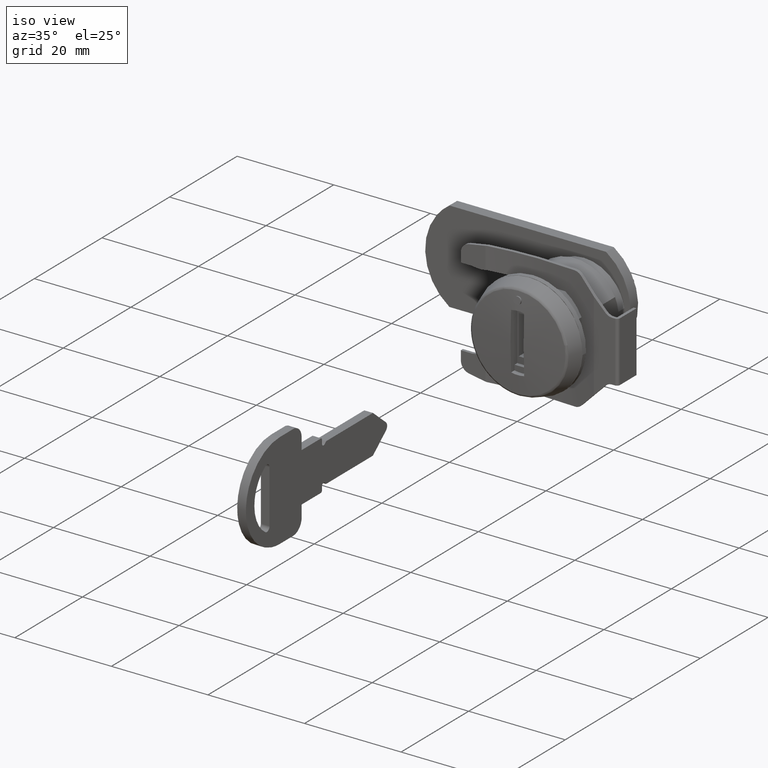
[diagram: clean part render]
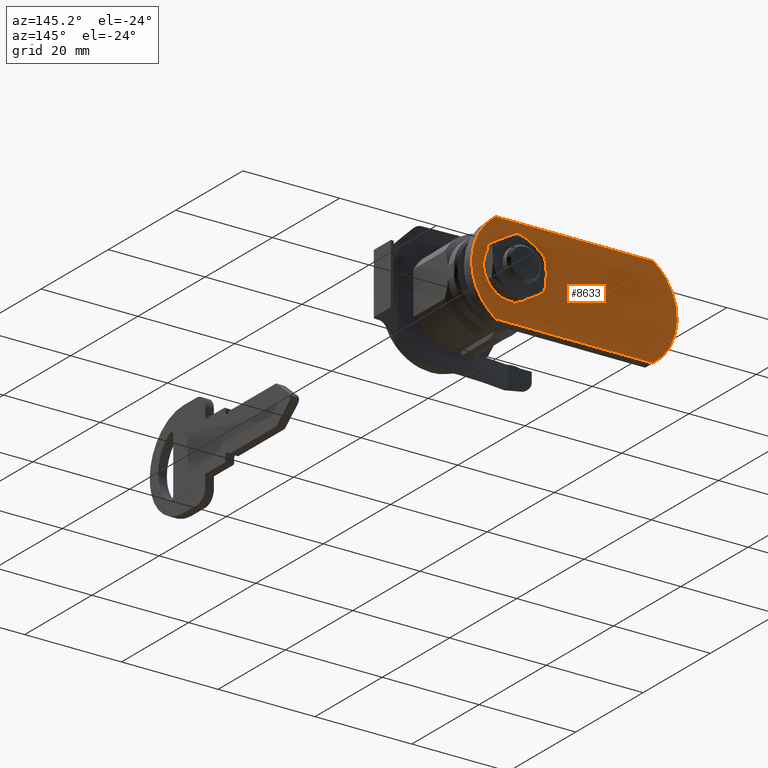
[diagram: tour spotlight — one face highlighted and labeled with its STEP entity id]
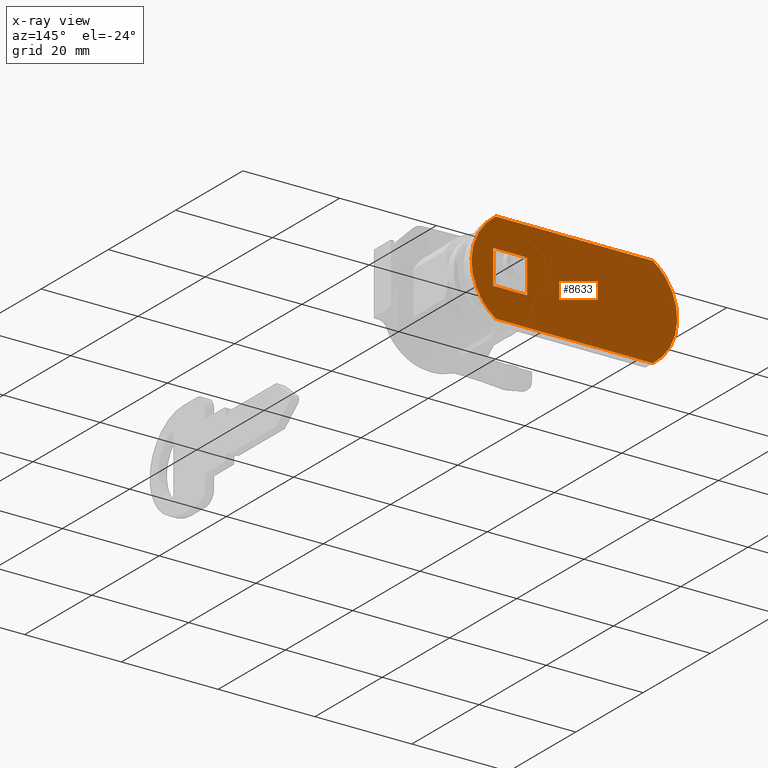
[diagram: x-ray of the same camera — body ghosted, this tour face saturated]
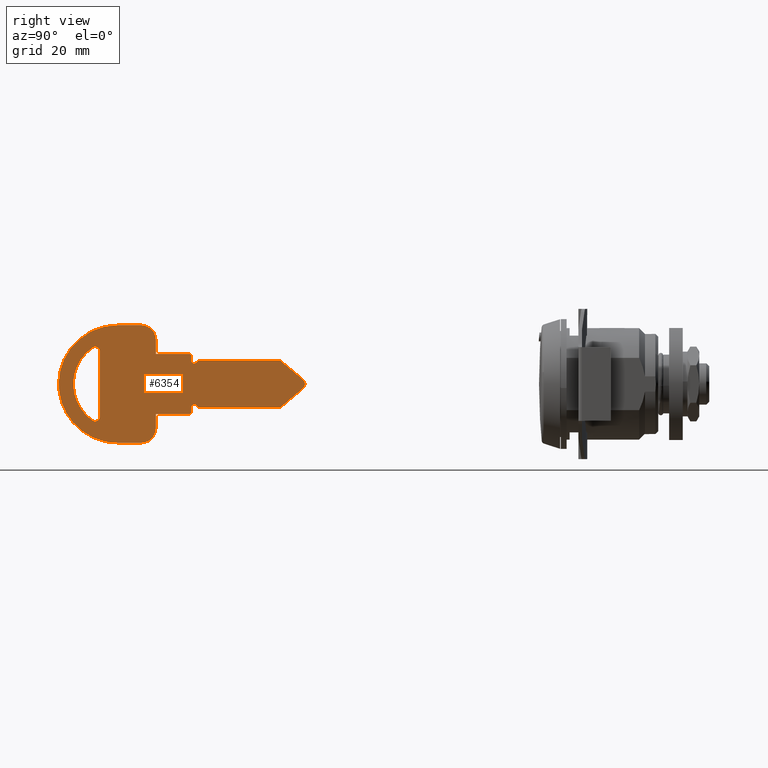
[diagram: tour spotlight — one face highlighted and labeled with its STEP entity id]
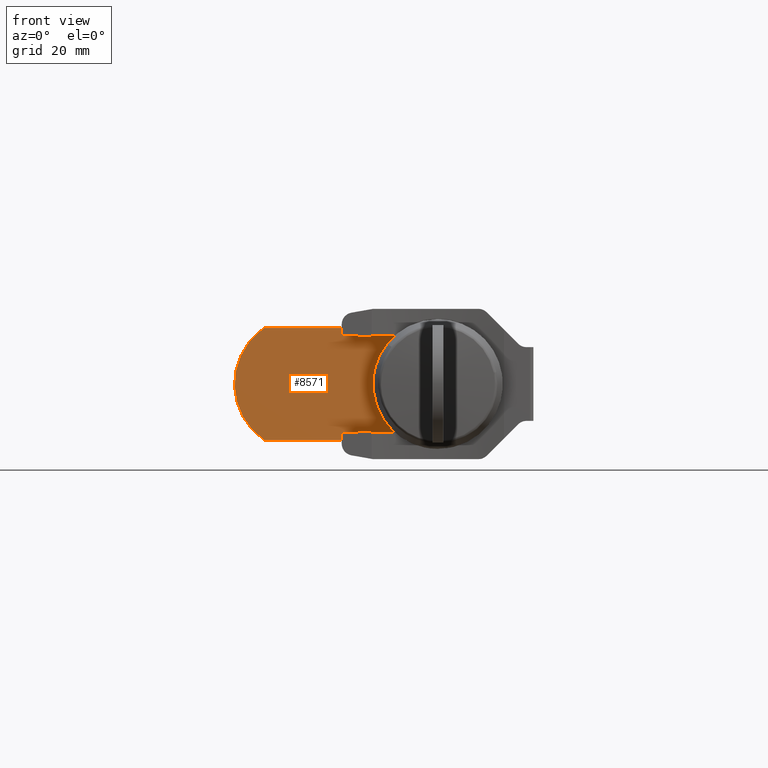
[diagram: tour spotlight — one face highlighted and labeled with its STEP entity id]
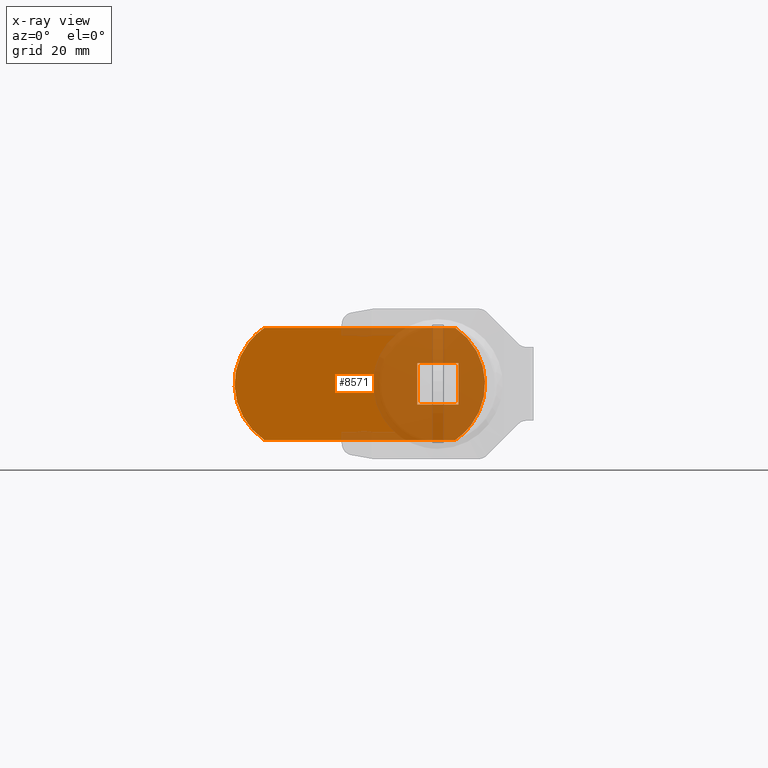
[diagram: x-ray of the same camera — body ghosted, this tour face saturated]
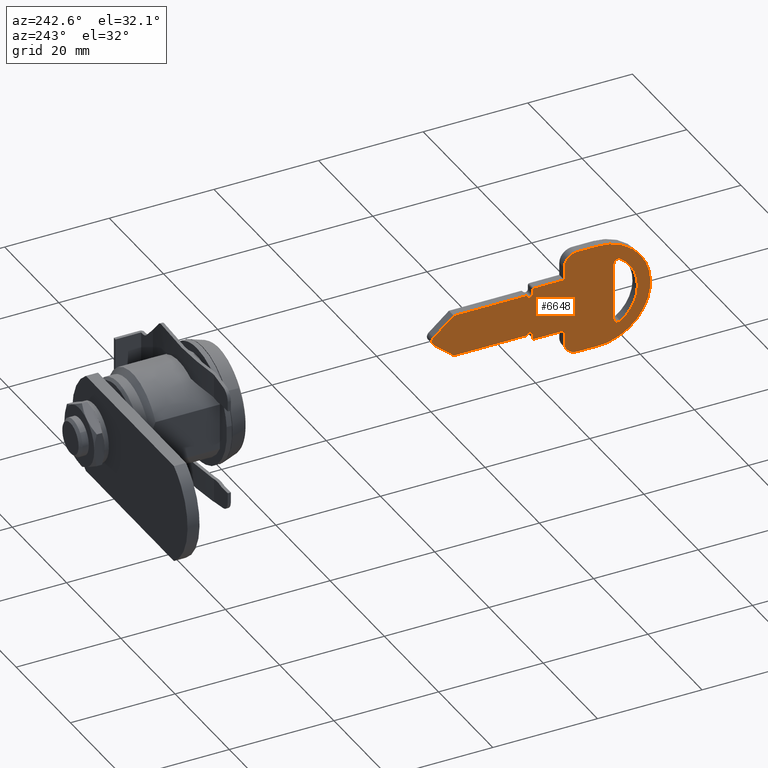
[diagram: tour spotlight — one face highlighted and labeled with its STEP entity id]
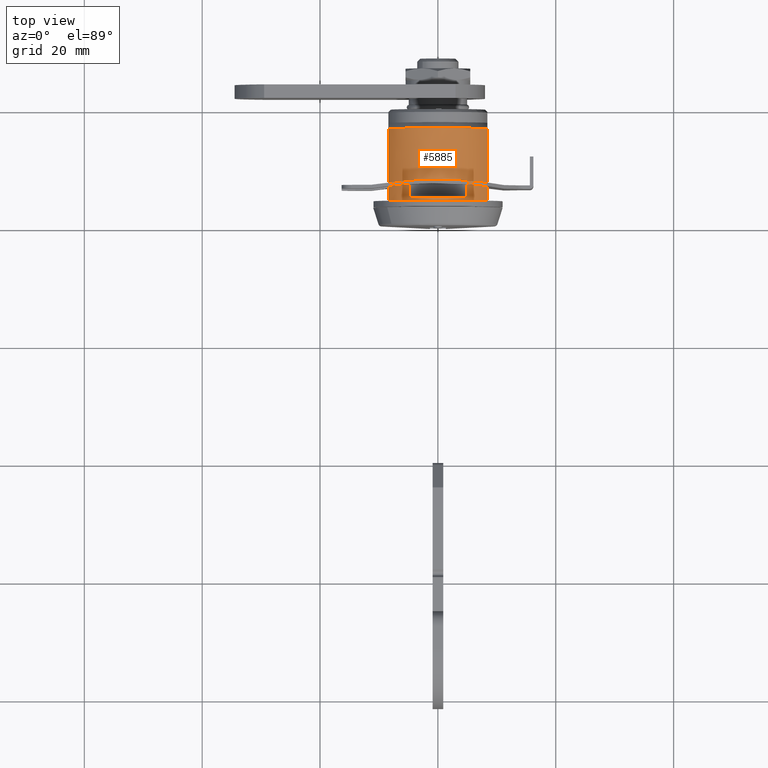
[diagram: tour spotlight — one face highlighted and labeled with its STEP entity id]
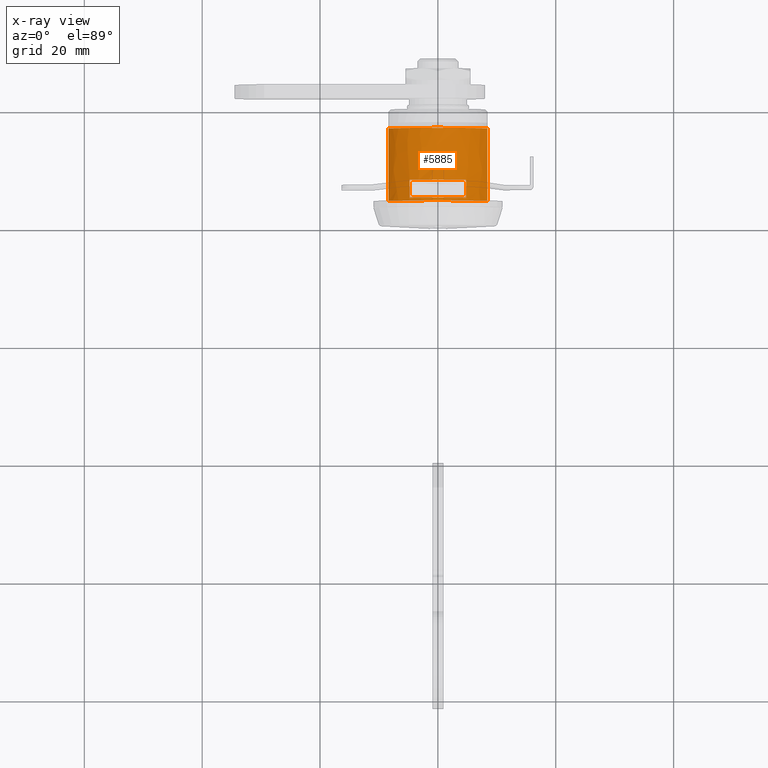
[diagram: x-ray of the same camera — body ghosted, this tour face saturated]
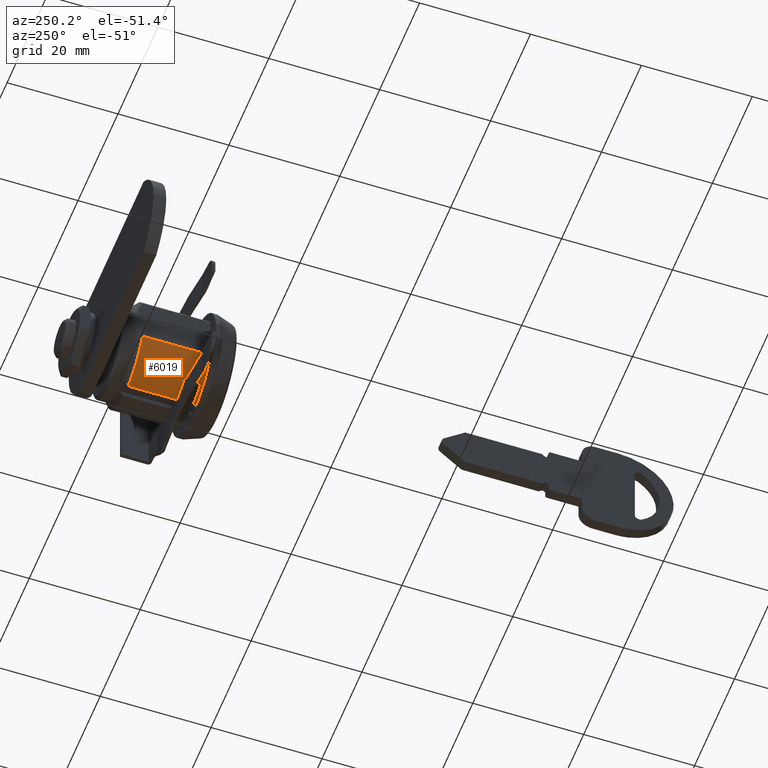
[diagram: tour spotlight — one face highlighted and labeled with its STEP entity id]
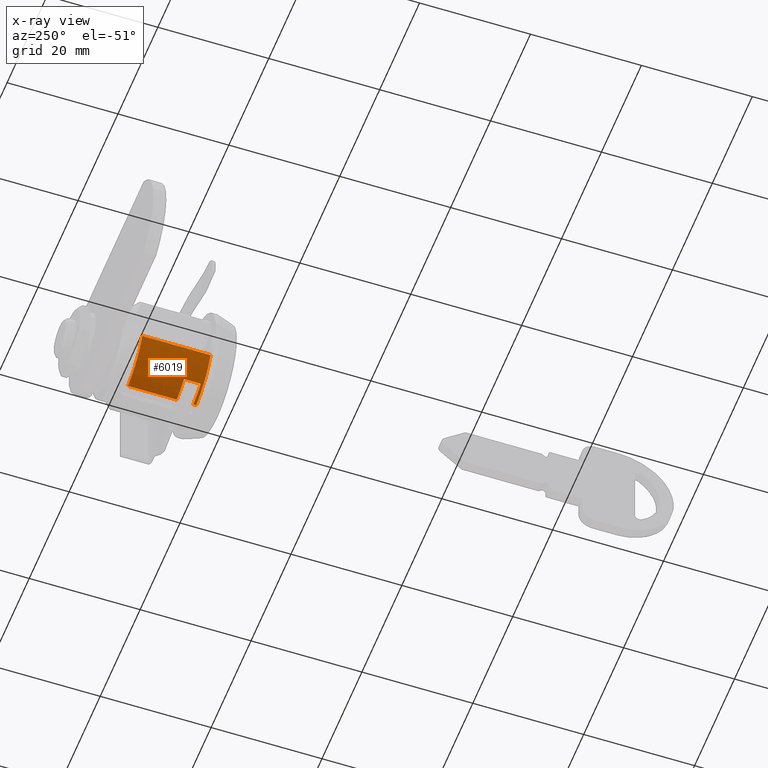
[diagram: x-ray of the same camera — body ghosted, this tour face saturated]
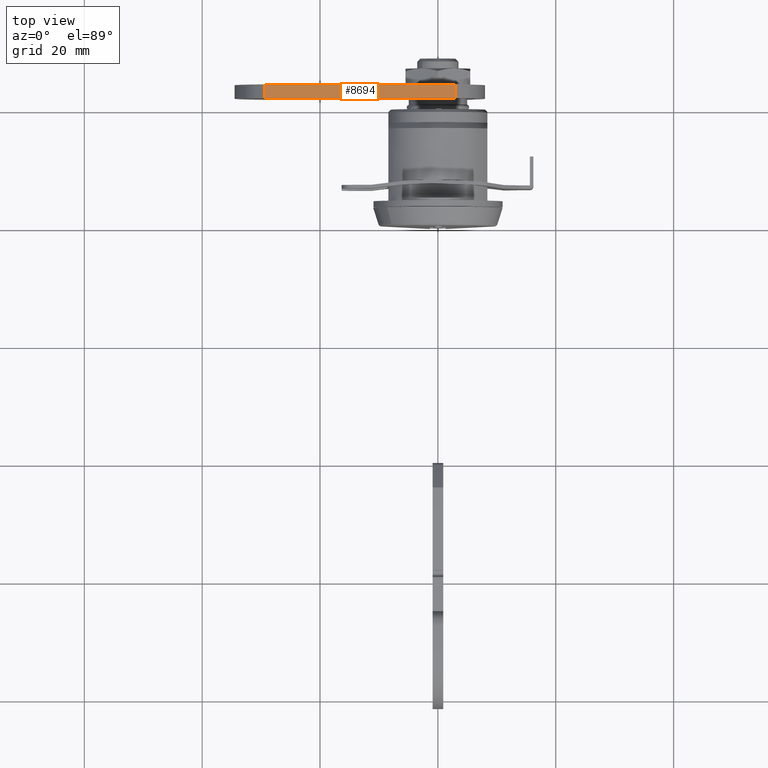
[diagram: tour spotlight — one face highlighted and labeled with its STEP entity id]
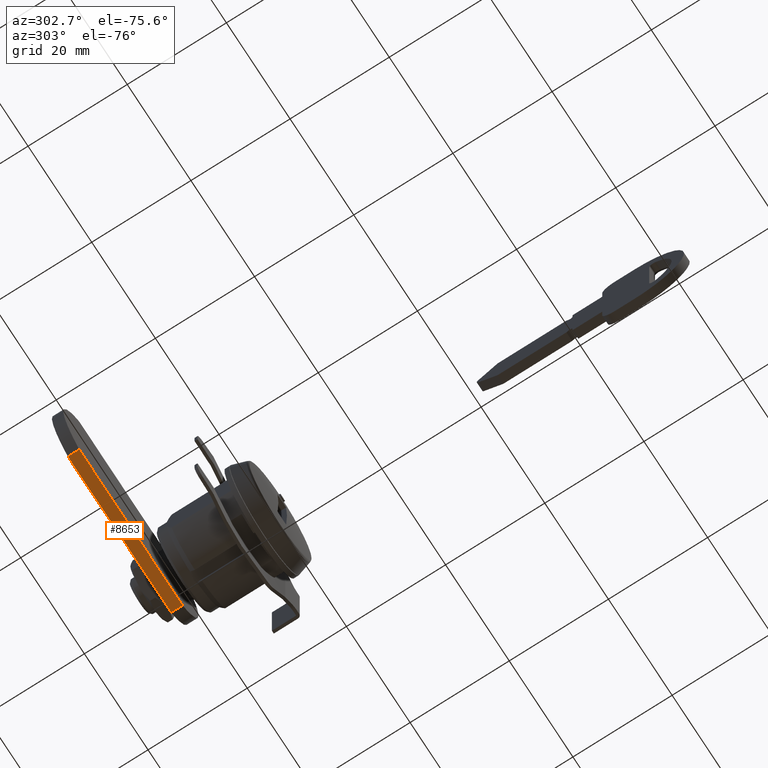
[diagram: tour spotlight — one face highlighted and labeled with its STEP entity id]
A machine part: a face-by-face anatomy tour. The part has 181 B-rep faces; the first image is the clean iso view, then the 8 largest visible faces are spotlighted one at a time (largest first), each with its STEP entity span.

Face 1 — auxiliary view, entity #8633. An x-ray twin of the same camera follows (body ghosted, this face saturated) — the face is partly hidden behind the body. In plain terms, the highlighted face is a freeform B-spline surface patch.
Definition (entity closure, byte-faithful):
#8412=CARTESIAN_POINT('',(24.401255000000099,-3.500000000000000,-3.500000000000000));
#8413=VERTEX_POINT('',#8412);
#8419=CARTESIAN_POINT('',(24.401255000000099,3.500000000000000,-3.500000000000000));
#8420=VERTEX_POINT('',#8419);
#8421=CARTESIAN_POINT('',(24.401255000000099,3.500000000000000,-3.500000000000000));
#8422=CARTESIAN_POINT('',(24.401255000000099,-3.500000000000000,-3.500000000000000));
#8423=QUASI_UNIFORM_CURVE('',1,(#8421,#8422),.UNSPECIFIED.,.F.,.U.);
#8424=EDGE_CURVE('',#8420,#8413,#8423,.T.);
#8447=CARTESIAN_POINT('',(24.401255000000099,3.500000000000000,3.500000000000000));
#8448=VERTEX_POINT('',#8447);
#8449=CARTESIAN_POINT('',(24.401255000000099,3.500000000000000,3.500000000000000));
#8450=CARTESIAN_POINT('',(24.401255000000099,3.500000000000000,-3.500000000000000));
#8451=QUASI_UNIFORM_CURVE('',1,(#8449,#8450),.UNSPECIFIED.,.F.,.U.);
#8452=EDGE_CURVE('',#8448,#8420,#8451,.T.);
#8475=CARTESIAN_POINT('',(24.401255000000099,-3.500000000000000,3.500000000000000));
#8476=VERTEX_POINT('',#8475);
#8477=CARTESIAN_POINT('',(24.401255000000099,-3.500000000000000,3.500000000000000));
#8478=CARTESIAN_POINT('',(24.401255000000099,3.500000000000000,3.500000000000000));
#8479=QUASI_UNIFORM_CURVE('',1,(#8477,#8478),.UNSPECIFIED.,.F.,.U.);
#8480=EDGE_CURVE('',#8476,#8448,#8479,.T.);
#8501=CARTESIAN_POINT('',(24.401255000000099,-3.500000000000000,-3.500000000000000));
#8502=CARTESIAN_POINT('',(24.401255000000099,-3.500000000000000,3.500000000000000));
#8503=QUASI_UNIFORM_CURVE('',1,(#8501,#8502),.UNSPECIFIED.,.F.,.U.);
#8504=EDGE_CURVE('',#8413,#8476,#8503,.T.);
#8572=CARTESIAN_POINT('',(24.401255000000099,-10.122874917626749,10.449049963174319));
#8573=CARTESIAN_POINT('',(24.401255000000099,36.622876057565563,10.449049963174319));
#8574=CARTESIAN_POINT('',(24.401255000000099,-10.122874917626749,-10.449050472794230));
#8575=CARTESIAN_POINT('',(24.401255000000099,36.622876057565563,-10.449050472794230));
#8576=B_SPLINE_SURFACE_WITH_KNOTS('',1,1,((#8572,#8574),(#8573,#8575)),.UNSPECIFIED.,.F.,.F.,.U.,(2,2),(2,2),(0.0,46.745750975192308),(0.0,20.898100435968558),.UNSPECIFIED.);
#8577=CARTESIAN_POINT('',(24.401255000000099,29.480741000000101,-9.500000000000199));
#8578=VERTEX_POINT('',#8577);
#8579=CARTESIAN_POINT('',(24.401255000000099,29.480741000000101,9.500000000000000));
#8580=VERTEX_POINT('',#8579);
#8581=CARTESIAN_POINT('',(24.401255000000099,29.480741000000101,-9.500000000000199));
#8582=CARTESIAN_POINT('',(24.401255000000106,34.500000297743824,-6.075945747461589));
#8583=CARTESIAN_POINT('',(24.401255000000099,34.499999999999993,-0.000000436457379));
#8584=CARTESIAN_POINT('',(24.401255000000106,34.499999702256140,6.075944874546834));
#8585=CARTESIAN_POINT('',(24.401255000000099,29.480741000000101,9.500000000000000));
#8593=(BOUNDED_CURVE()B_SPLINE_CURVE(2,(#8581,#8582,#8583,#8584,#8585),.UNSPECIFIED.,.F.,.U.)B_SPLINE_CURVE_WITH_KNOTS((3,2,3),(0.0,0.500000000000000,1.0),.UNSPECIFIED.)CURVE()GEOMETRIC_REPRESENTATION_ITEM()RATIONAL_B_SPLINE_CURVE((1.0,0.884178343809524,1.0,0.884178343809524,1.0))REPRESENTATION_ITEM(''));
#8594=EDGE_CURVE('',#8578,#8580,#8593,.T.);
#8595=ORIENTED_EDGE('',*,*,#8594,.T.);
#8596=CARTESIAN_POINT('',(24.401255000000099,-2.980740999999910,9.500000000000000));
#8597=VERTEX_POINT('',#8596);
#8598=CARTESIAN_POINT('',(24.401255000000099,29.480741000000101,9.500000000000000));
#8599=CARTESIAN_POINT('',(24.401255000000099,-2.980740999999910,9.500000000000000));
#8600=QUASI_UNIFORM_CURVE('',1,(#8598,#8599),.UNSPECIFIED.,.F.,.U.);
#8601=EDGE_CURVE('',#8580,#8597,#8600,.T.);
#8602=ORIENTED_EDGE('',*,*,#8601,.T.);
#8603=CARTESIAN_POINT('',(24.401255000000099,-2.980740738733350,-9.499999972490629));
#8604=VERTEX_POINT('',#8603);
#8605=CARTESIAN_POINT('',(24.401255000000099,-2.980740999999910,9.500000000000000));
#8606=CARTESIAN_POINT('',(24.401255000000106,-8.000000052920477,6.075945274902850));
#8607=CARTESIAN_POINT('',(24.401255000000099,-8.0,-0.000000100163092));
#8608=CARTESIAN_POINT('',(24.401255000000106,-7.999999947079524,-6.075945475229033));
#8609=CARTESIAN_POINT('',(24.401255000000099,-2.980740738733349,-9.499999972490627));
#8617=(BOUNDED_CURVE()B_SPLINE_CURVE(2,(#8605,#8606,#8607,#8608,#8609),.UNSPECIFIED.,.F.,.U.)B_SPLINE_CURVE_WITH_KNOTS((3,2,3),(0.0,0.500000000000000,1.0),.UNSPECIFIED.)CURVE()GEOMETRIC_REPRESENTATION_ITEM()RATIONAL_B_SPLINE_CURVE((1.0,0.884178341775124,1.0,0.884178341775124,1.0))REPRESENTATION_ITEM(''));
#8618=EDGE_CURVE('',#8597,#8604,#8617,.T.);
#8619=ORIENTED_EDGE('',*,*,#8618,.T.);
#8620=CARTESIAN_POINT('',(24.401255000000099,-2.980740738733350,-9.499999972490629));
#8621=CARTESIAN_POINT('',(24.401255000000099,29.480741000000101,-9.500000000000199));
#8622=QUASI_UNIFORM_CURVE('',1,(#8620,#8621),.UNSPECIFIED.,.F.,.U.);
#8623=EDGE_CURVE('',#8604,#8578,#8622,.T.);
#8624=ORIENTED_EDGE('',*,*,#8623,.T.);
#8625=EDGE_LOOP('',(#8595,#8602,#8619,#8624));
#8626=FACE_OUTER_BOUND('',#8625,.T.);
#8627=ORIENTED_EDGE('',*,*,#8504,.T.);
#8628=ORIENTED_EDGE('',*,*,#8480,.T.);
#8629=ORIENTED_EDGE('',*,*,#8452,.T.);
#8630=ORIENTED_EDGE('',*,*,#8424,.T.);
#8631=EDGE_LOOP('',(#8627,#8628,#8629,#8630));
#8632=FACE_BOUND('',#8631,.T.);
#8633=ADVANCED_FACE('',(#8626,#8632),#8576,.F.);

Face 2 — right view, entity #6354. In plain terms, the highlighted face is a freeform B-spline surface patch.
Definition (entity closure, byte-faithful):
#6061=CARTESIAN_POINT('',(-83.586910526594721,-0.900000000000000,10.998999961236120));
#6062=CARTESIAN_POINT('',(-37.611089978520432,-0.900000000000000,10.998999961236120));
#6063=CARTESIAN_POINT('',(-83.586910526594721,-0.900000000000000,-10.999000497677921));
#6064=CARTESIAN_POINT('',(-37.611089978520432,-0.900000000000000,-10.999000497677921));
#6065=B_SPLINE_SURFACE_WITH_KNOTS('',1,1,((#6061,#6063),(#6062,#6064)),.UNSPECIFIED.,.F.,.F.,.U.,(2,2),(2,2),(0.0,45.975820548074303),(0.0,21.998000458914039),.UNSPECIFIED.);
#6066=CARTESIAN_POINT('',(-67.499000999999893,-0.900000000000012,-9.999999999999799));
#6067=VERTEX_POINT('',#6066);
#6068=CARTESIAN_POINT('',(-71.499000999999893,-0.900000000000012,-10.0));
#6069=VERTEX_POINT('',#6068);
#6070=CARTESIAN_POINT('',(-67.499000999999893,-0.900000000000012,-9.999999999999799));
#6071=CARTESIAN_POINT('',(-71.499000999999893,-0.900000000000012,-10.0));
#6072=QUASI_UNIFORM_CURVE('',1,(#6070,#6071),.UNSPECIFIED.,.F.,.U.);
#6073=EDGE_CURVE('',#6067,#6069,#6072,.T.);
#6074=ORIENTED_EDGE('',*,*,#6073,.F.);
#6075=CARTESIAN_POINT('',(-64.999000999999907,-0.900000000000012,-7.499999999999799));
#6076=VERTEX_POINT('',#6075);
#6077=CARTESIAN_POINT('',(-67.499000999999893,-0.900000000000012,-9.999999999999799));
#6078=CARTESIAN_POINT('',(-64.999000999999893,-0.900000000000012,-9.999999999999799));
#6079=CARTESIAN_POINT('',(-64.999000999999893,-0.900000000000012,-7.499999999999799));
#6087=(BOUNDED_CURVE()B_SPLINE_CURVE(2,(#6077,#6078,#6079),.UNSPECIFIED.,.F.,.U.)CURVE()GEOMETRIC_REPRESENTATION_ITEM()QUASI_UNIFORM_CURVE()RATIONAL_B_SPLINE_CURVE((1.0,0.707106781186548,1.0))REPRESENTATION_ITEM(''));
#6088=EDGE_CURVE('',#6067,#6076,#6087,.T.);
#6089=ORIENTED_EDGE('',*,*,#6088,.T.);
#6090=CARTESIAN_POINT('',(-64.999000999999907,-0.900000000000012,-5.099999999999800));
#6091=VERTEX_POINT('',#6090);
#6092=CARTESIAN_POINT('',(-64.999000999999907,-0.900000000000012,-5.099999999999800));
#6093=CARTESIAN_POINT('',(-64.999000999999907,-0.900000000000012,-7.499999999999799));
#6094=QUASI_UNIFORM_CURVE('',1,(#6092,#6093),.UNSPECIFIED.,.F.,.U.);
#6095=EDGE_CURVE('',#6091,#6076,#6094,.T.);
#6096=ORIENTED_EDGE('',*,*,#6095,.F.);
#6097=CARTESIAN_POINT('',(-59.299000999999897,-0.900000000000012,-5.099999999999901));
#6098=VERTEX_POINT('',#6097);
#6099=CARTESIAN_POINT('',(-59.299000999999897,-0.900000000000012,-5.099999999999901));
#6100=CARTESIAN_POINT('',(-64.999000999999907,-0.900000000000012,-5.099999999999800));
#6101=QUASI_UNIFORM_CURVE('',1,(#6099,#6100),.UNSPECIFIED.,.F.,.U.);
#6102=EDGE_CURVE('',#6098,#6091,#6101,.T.);
#6103=ORIENTED_EDGE('',*,*,#6102,.F.);
#6104=CARTESIAN_POINT('',(-58.999000999999900,-0.900000000000012,-4.799999999999900));
#6105=VERTEX_POINT('',#6104);
#6106=CARTESIAN_POINT('',(-59.299000999999897,-0.900000000000012,-5.099999999999900));
#6107=CARTESIAN_POINT('',(-58.999000999999900,-0.900000000000012,-5.099999999999899));
#6108=CARTESIAN_POINT('',(-58.999000999999900,-0.900000000000012,-4.799999999999900));
#6116=(BOUNDED_CURVE()B_SPLINE_CURVE(2,(#6106,#6107,#6108),.UNSPECIFIED.,.F.,.U.)CURVE()GEOMETRIC_REPRESENTATION_ITEM()QUASI_UNIFORM_CURVE()RATIONAL_B_SPLINE_CURVE((1.0,0.707106781186547,1.0))REPRESENTATION_ITEM(''));
#6117=EDGE_CURVE('',#6098,#6105,#6116,.T.);
#6118=ORIENTED_EDGE('',*,*,#6117,.T.);
#6119=CARTESIAN_POINT('',(-58.999000999999900,-0.900000000000012,-3.999999999999800));
#6120=VERTEX_POINT('',#6119);
#6121=CARTESIAN_POINT('',(-58.999000999999900,-0.900000000000012,-3.999999999999800));
#6122=CARTESIAN_POINT('',(-58.999000999999900,-0.900000000000012,-4.799999999999900));
#6123=QUASI_UNIFORM_CURVE('',1,(#6121,#6122),.UNSPECIFIED.,.F.,.U.);
#6124=EDGE_CURVE('',#6120,#6105,#6123,.T.);
#6125=ORIENTED_EDGE('',*,*,#6124,.F.);
#6126=CARTESIAN_POINT('',(-58.145446999999898,-0.900000000000012,-3.646446999999911));
#6127=VERTEX_POINT('',#6126);
#6128=CARTESIAN_POINT('',(-58.145446999999898,-0.900000000000012,-3.646446999999911));
#6129=CARTESIAN_POINT('',(-58.381683779083531,-0.900000000000012,-3.410209771551301));
#6130=CARTESIAN_POINT('',(-58.690342389541719,-0.900000000000012,-3.538060098445274));
#6131=CARTESIAN_POINT('',(-58.999000999999893,-0.900000000000012,-3.665910425339247));
#6132=CARTESIAN_POINT('',(-58.999000999999900,-0.900000000000012,-3.999999999999800));
#6140=(BOUNDED_CURVE()B_SPLINE_CURVE(2,(#6128,#6129,#6130,#6131,#6132),.UNSPECIFIED.,.F.,.U.)B_SPLINE_CURVE_WITH_KNOTS((3,2,3),(0.0,0.500000000000000,1.0),.UNSPECIFIED.)CURVE()GEOMETRIC_REPRESENTATION_ITEM()RATIONAL_B_SPLINE_CURVE((1.0,0.831469415878793,1.0,0.831469415878793,1.0))REPRESENTATION_ITEM(''));
#6141=EDGE_CURVE('',#6127,#6120,#6140,.T.);
#6142=ORIENTED_EDGE('',*,*,#6141,.F.);
#6143=CARTESIAN_POINT('',(-57.791893999999900,-0.900000000000012,-3.999999999999800));
#6144=VERTEX_POINT('',#6143);
#6145=CARTESIAN_POINT('',(-57.791893999999900,-0.900000000000012,-3.999999999999800));
#6146=CARTESIAN_POINT('',(-58.145446999999898,-0.900000000000012,-3.646446999999911));
#6147=QUASI_UNIFORM_CURVE('',1,(#6145,#6146),.UNSPECIFIED.,.F.,.U.);
#6148=EDGE_CURVE('',#6144,#6127,#6147,.T.);
#6149=ORIENTED_EDGE('',*,*,#6148,.F.);
#6150=CARTESIAN_POINT('',(-43.910290999999901,-0.900000000000012,-3.999999999999800));
#6151=VERTEX_POINT('',#6150);
#6152=CARTESIAN_POINT('',(-43.910290999999901,-0.900000000000012,-3.999999999999800));
#6153=CARTESIAN_POINT('',(-57.791893999999900,-0.900000000000012,-3.999999999999800));
#6154=QUASI_UNIFORM_CURVE('',1,(#6152,#6153),.UNSPECIFIED.,.F.,.U.);
#6155=EDGE_CURVE('',#6151,#6144,#6154,.T.);
#6156=ORIENTED_EDGE('',*,*,#6155,.F.);
#6157=CARTESIAN_POINT('',(-40.056213390313353,-0.900000000000012,-0.766044443118980));
#6158=VERTEX_POINT('',#6157);
#6159=CARTESIAN_POINT('',(-40.056213390313353,-0.900000000000012,-0.766044443118980));
#6160=CARTESIAN_POINT('',(-43.910290999999901,-0.900000000000012,-3.999999999999800));
#6161=QUASI_UNIFORM_CURVE('',1,(#6159,#6160),.UNSPECIFIED.,.F.,.U.);
#6162=EDGE_CURVE('',#6158,#6151,#6161,.T.);
#6163=ORIENTED_EDGE('',*,*,#6162,.F.);
#6164=CARTESIAN_POINT('',(-40.056212999999893,-0.900000000000012,0.766044000000108));
#6165=VERTEX_POINT('',#6164);
#6166=CARTESIAN_POINT('',(-40.056213390313353,-0.900000000000012,-0.766044443118974));
#6167=CARTESIAN_POINT('',(-39.699001136121815,-0.900000000000012,-0.466307772374844));
#6168=CARTESIAN_POINT('',(-39.699000999999939,-0.900000000000012,-0.000000291914410));
#6169=CARTESIAN_POINT('',(-39.699000863878062,-0.900000000000012,0.466307188546023));
#6170=CARTESIAN_POINT('',(-40.056212999999893,-0.900000000000012,0.766044000000108));
#6178=(BOUNDED_CURVE()B_SPLINE_CURVE(2,(#6166,#6167,#6168,#6169,#6170),.UNSPECIFIED.,.F.,.U.)B_SPLINE_CURVE_WITH_KNOTS((3,2,3),(0.0,0.500000000000000,1.0),.UNSPECIFIED.)CURVE()GEOMETRIC_REPRESENTATION_ITEM()RATIONAL_B_SPLINE_CURVE((1.0,0.906307848720822,1.0,0.906307848720822,1.0))REPRESENTATION_ITEM(''));
#6179=EDGE_CURVE('',#6158,#6165,#6178,.T.);
#6180=ORIENTED_EDGE('',*,*,#6179,.T.);
#6181=CARTESIAN_POINT('',(-43.910290999999901,-0.900000000000012,4.0));
#6182=VERTEX_POINT('',#6181);
#6183=CARTESIAN_POINT('',(-43.910290999999901,-0.900000000000012,4.0));
#6184=CARTESIAN_POINT('',(-40.056212999999893,-0.900000000000012,0.766044000000108));
#6185=QUASI_UNIFORM_CURVE('',1,(#6183,#6184),.UNSPECIFIED.,.F.,.U.);
#6186=EDGE_CURVE('',#6182,#6165,#6185,.T.);
#6187=ORIENTED_EDGE('',*,*,#6186,.F.);
#6188=CARTESIAN_POINT('',(-57.791893999999900,-0.900000000000012,3.999999000000200));
#6189=VERTEX_POINT('',#6188);
#6190=CARTESIAN_POINT('',(-57.791893999999900,-0.900000000000012,3.999999000000200));
#6191=CARTESIAN_POINT('',(-43.910290999999901,-0.900000000000012,4.0));
#6192=QUASI_UNIFORM_CURVE('',1,(#6190,#6191),.UNSPECIFIED.,.F.,.U.);
#6193=EDGE_CURVE('',#6189,#6182,#6192,.T.);
#6194=ORIENTED_EDGE('',*,*,#6193,.F.);
#6195=CARTESIAN_POINT('',(-58.145447609406602,-0.900000000000012,3.646446609406730));
#6196=VERTEX_POINT('',#6195);
#6197=CARTESIAN_POINT('',(-58.145447609406602,-0.900000000000012,3.646446609406730));
#6198=CARTESIAN_POINT('',(-57.791893999999900,-0.900000000000012,3.999999000000200));
#6199=QUASI_UNIFORM_CURVE('',1,(#6197,#6198),.UNSPECIFIED.,.F.,.U.);
#6200=EDGE_CURVE('',#6196,#6189,#6199,.T.);
#6201=ORIENTED_EDGE('',*,*,#6200,.F.);
#6202=CARTESIAN_POINT('',(-58.999000999999900,-0.900000000000012,4.0));
#6203=VERTEX_POINT('',#6202);
#6204=CARTESIAN_POINT('',(-58.999000999999900,-0.900000000000012,4.0));
#6205=CARTESIAN_POINT('',(-58.999000999999900,-0.900000000000012,3.665910681040343));
#6206=CARTESIAN_POINT('',(-58.690342716182442,-0.900000000000012,3.538060233744353));
#6207=CARTESIAN_POINT('',(-58.381684432364963,-0.900000000000012,3.410209786448361));
#6208=CARTESIAN_POINT('',(-58.145447609406610,-0.900000000000012,3.646446609406742));
#6216=(BOUNDED_CURVE()B_SPLINE_CURVE(2,(#6204,#6205,#6206,#6207,#6208),.UNSPECIFIED.,.F.,.U.)B_SPLINE_CURVE_WITH_KNOTS((3,2,3),(0.0,0.500000000000000,1.0),.UNSPECIFIED.)CURVE()GEOMETRIC_REPRESENTATION_ITEM()RATIONAL_B_SPLINE_CURVE((1.0,0.831469612302539,1.0,0.831469612302539,1.0))REPRESENTATION_ITEM(''));
#6217=EDGE_CURVE('',#6203,#6196,#6216,.T.);
#6218=ORIENTED_EDGE('',*,*,#6217,.F.);
#6219=CARTESIAN_POINT('',(-58.999000999999900,-0.900000000000012,4.800000000000209));
#6220=VERTEX_POINT('',#6219);
#6221=CARTESIAN_POINT('',(-58.999000999999900,-0.900000000000012,4.800000000000209));
#6222=CARTESIAN_POINT('',(-58.999000999999900,-0.900000000000012,4.0));
#6223=QUASI_UNIFORM_CURVE('',1,(#6221,#6222),.UNSPECIFIED.,.F.,.U.);
#6224=EDGE_CURVE('',#6220,#6203,#6223,.T.);
#6225=ORIENTED_EDGE('',*,*,#6224,.F.);
#6226=CARTESIAN_POINT('',(-59.299000999999897,-0.900000000000012,5.100000000000111));
#6227=VERTEX_POINT('',#6226);
#6228=CARTESIAN_POINT('',(-58.999000999999900,-0.900000000000012,4.800000000000209));
#6229=CARTESIAN_POINT('',(-58.999000999999900,-0.900000000000012,5.100000000000209));
#6230=CARTESIAN_POINT('',(-59.299000999999897,-0.900000000000012,5.100000000000209));
#6238=(BOUNDED_CURVE()B_SPLINE_CURVE(2,(#6228,#6229,#6230),.UNSPECIFIED.,.F.,.U.)CURVE()GEOMETRIC_REPRESENTATION_ITEM()QUASI_UNIFORM_CURVE()RATIONAL_B_SPLINE_CURVE((1.0,0.707106781186547,1.0))REPRESENTATION_ITEM(''));
#6239=EDGE_CURVE('',#6220,#6227,#6238,.T.);
#6240=ORIENTED_EDGE('',*,*,#6239,.T.);
#6241=CARTESIAN_POINT('',(-64.999000999999907,-0.900000000000012,5.100000000000111));
#6242=VERTEX_POINT('',#6241);
#6243=CARTESIAN_POINT('',(-64.999000999999907,-0.900000000000012,5.100000000000111));
#6244=CARTESIAN_POINT('',(-59.299000999999897,-0.900000000000012,5.100000000000111));
#6245=QUASI_UNIFORM_CURVE('',1,(#6243,#6244),.UNSPECIFIED.,.F.,.U.);
#6246=EDGE_CURVE('',#6242,#6227,#6245,.T.);
#6247=ORIENTED_EDGE('',*,*,#6246,.F.);
#6248=CARTESIAN_POINT('',(-64.999000999999907,-0.900000000000012,7.500000000000200));
#6249=VERTEX_POINT('',#6248);
#6250=CARTESIAN_POINT('',(-64.999000999999907,-0.900000000000012,7.500000000000200));
#6251=CARTESIAN_POINT('',(-64.999000999999907,-0.900000000000012,5.100000000000111));
#6252=QUASI_UNIFORM_CURVE('',1,(#6250,#6251),.UNSPECIFIED.,.F.,.U.);
#6253=EDGE_CURVE('',#6249,#6242,#6252,.T.);
#6254=ORIENTED_EDGE('',*,*,#6253,.F.);
#6255=CARTESIAN_POINT('',(-67.499000999999893,-0.900000000000012,10.0));
#6256=VERTEX_POINT('',#6255);
#6257=CARTESIAN_POINT('',(-64.999000999999893,-0.900000000000012,7.500000000000200));
#6258=CARTESIAN_POINT('',(-64.999000999999893,-0.900000000000012,10.000000000000199));
#6259=CARTESIAN_POINT('',(-67.499000999999893,-0.900000000000012,10.000000000000201));
#6267=(BOUNDED_CURVE()B_SPLINE_CURVE(2,(#6257,#6258,#6259),.UNSPECIFIED.,.F.,.U.)CURVE()GEOMETRIC_REPRESENTATION_ITEM()QUASI_UNIFORM_CURVE()RATIONAL_B_SPLINE_CURVE((1.0,0.707106781186548,1.0))REPRESENTATION_ITEM(''));
#6268=EDGE_CURVE('',#6249,#6256,#6267,.T.);
#6269=ORIENTED_EDGE('',*,*,#6268,.T.);
#6270=CARTESIAN_POINT('',(-71.499000999999893,-0.900000000000012,10.0));
#6271=VERTEX_POINT('',#6270);
#6272=CARTESIAN_POINT('',(-71.499000999999893,-0.900000000000012,10.0));
#6273=CARTESIAN_POINT('',(-67.499000999999893,-0.900000000000012,10.0));
#6274=QUASI_UNIFORM_CURVE('',1,(#6272,#6273),.UNSPECIFIED.,.F.,.U.);
#6275=EDGE_CURVE('',#6271,#6256,#6274,.T.);
#6276=ORIENTED_EDGE('',*,*,#6275,.F.);
#6277=CARTESIAN_POINT('',(-71.499000999999893,-0.900000000000012,10.0));
#6278=CARTESIAN_POINT('',(-81.499000999999893,-0.900000000000012,10.000000000000002));
#6279=CARTESIAN_POINT('',(-81.499000999999893,-0.900000000000012,0.0));
#6280=CARTESIAN_POINT('',(-81.499000999999893,-0.900000000000012,-10.000000000000002));
#6281=CARTESIAN_POINT('',(-71.499000999999893,-0.900000000000012,-10.0));
#6289=(BOUNDED_CURVE()B_SPLINE_CURVE(2,(#6277,#6278,#6279,#6280,#6281),.UNSPECIFIED.,.F.,.U.)B_SPLINE_CURVE_WITH_KNOTS((3,2,3),(0.0,0.500000000000000,1.0),.UNSPECIFIED.)CURVE()GEOMETRIC_REPRESENTATION_ITEM()RATIONAL_B_SPLINE_CURVE((1.0,0.707106781186548,1.0,0.707106781186548,1.0))REPRESENTATION_ITEM(''));
#6290=EDGE_CURVE('',#6271,#6069,#6289,.T.);
#6291=ORIENTED_EDGE('',*,*,#6290,.T.);
#6292=EDGE_LOOP('',(#6074,#6089,#6096,#6103,#6118,#6125,#6142,#6149,#6156,#6163,#6180,#6187,#6194,#6201,#6218,#6225,#6240,#6247,#6254,#6269,#6276,#6291));
#6293=FACE_OUTER_BOUND('',#6292,.T.);
#6294=CARTESIAN_POINT('',(-75.752732272446309,-0.900000000000012,-6.177035718029460));
#6295=VERTEX_POINT('',#6294);
#6296=CARTESIAN_POINT('',(-74.499000999999893,-0.900000000000012,-5.518151999999900));
#6297=VERTEX_POINT('',#6296);
#6298=CARTESIAN_POINT('',(-75.752732272446309,-0.900000000000012,-6.177035718029460));
#6299=CARTESIAN_POINT('',(-75.354669176929193,-0.900000000000012,-6.451156566914484));
#6300=CARTESIAN_POINT('',(-74.926835088464543,-0.900000000000012,-6.226313375881882));
#6301=CARTESIAN_POINT('',(-74.499000999999893,-0.900000000000012,-6.001470184849281));
#6302=CARTESIAN_POINT('',(-74.499000999999893,-0.900000000000012,-5.518151999999900));
#6310=(BOUNDED_CURVE()B_SPLINE_CURVE(2,(#6298,#6299,#6300,#6301,#6302),.UNSPECIFIED.,.F.,.U.)B_SPLINE_CURVE_WITH_KNOTS((3,2,3),(0.0,0.500000000000000,1.0),.UNSPECIFIED.)CURVE()GEOMETRIC_REPRESENTATION_ITEM()RATIONAL_B_SPLINE_CURVE((1.0,0.855922715383576,1.0,0.855922715383576,1.0))REPRESENTATION_ITEM(''));
#6311=EDGE_CURVE('',#6295,#6297,#6310,.T.);
#6312=ORIENTED_EDGE('',*,*,#6311,.F.);
#6313=CARTESIAN_POINT('',(-75.752732341719692,-0.900000000000012,6.177034805796840));
#6314=VERTEX_POINT('',#6313);
#6315=CARTESIAN_POINT('',(-75.752732341719692,-0.900000000000012,6.177034805796840));
#6316=CARTESIAN_POINT('',(-78.999001150944864,-0.900000000000012,3.941536630480182));
#6317=CARTESIAN_POINT('',(-78.999000999999893,-0.900000000000012,-0.000000287219802));
#6318=CARTESIAN_POINT('',(-78.999000849054909,-0.900000000000012,-3.941537204919789));
#6319=CARTESIAN_POINT('',(-75.752732272446295,-0.900000000000012,-6.177035718029444));
#6327=(BOUNDED_CURVE()B_SPLINE_CURVE(2,(#6315,#6316,#6317,#6318,#6319),.UNSPECIFIED.,.F.,.U.)B_SPLINE_CURVE_WITH_KNOTS((3,2,3),(0.0,0.500000000000000,1.0),.UNSPECIFIED.)CURVE()GEOMETRIC_REPRESENTATION_ITEM()RATIONAL_B_SPLINE_CURVE((1.0,0.885201728760249,1.0,0.885201728760249,1.0))REPRESENTATION_ITEM(''));
#6328=EDGE_CURVE('',#6314,#6295,#6327,.T.);
#6329=ORIENTED_EDGE('',*,*,#6328,.F.);
#6330=CARTESIAN_POINT('',(-74.499000999999893,-0.900000000000012,5.518151000000100));
#6331=VERTEX_POINT('',#6330);
#6332=CARTESIAN_POINT('',(-74.499000999999893,-0.900000000000012,5.518151000000100));
#6333=CARTESIAN_POINT('',(-74.499000999999907,-0.900000000000012,6.001469187332233));
#6334=CARTESIAN_POINT('',(-74.926835091684680,-0.900000000000012,6.226312377574389));
#6335=CARTESIAN_POINT('',(-75.354669183369467,-0.900000000000012,6.451155567816544));
#6336=CARTESIAN_POINT('',(-75.752732341719678,-0.900000000000012,6.177034805796814));
#6344=(BOUNDED_CURVE()B_SPLINE_CURVE(2,(#6332,#6333,#6334,#6335,#6336),.UNSPECIFIED.,.F.,.U.)B_SPLINE_CURVE_WITH_KNOTS((3,2,3),(0.0,0.500000000000000,1.0),.UNSPECIFIED.)CURVE()GEOMETRIC_REPRESENTATION_ITEM()RATIONAL_B_SPLINE_CURVE((1.0,0.855922714207893,1.0,0.855922714207893,1.0))REPRESENTATION_ITEM(''));
#6345=EDGE_CURVE('',#6331,#6314,#6344,.T.);
#6346=ORIENTED_EDGE('',*,*,#6345,.F.);
#6347=CARTESIAN_POINT('',(-74.499000999999893,-0.900000000000012,-5.518151999999900));
#6348=CARTESIAN_POINT('',(-74.499000999999893,-0.900000000000012,5.518151000000100));
#6349=QUASI_UNIFORM_CURVE('',1,(#6347,#6348),.UNSPECIFIED.,.F.,.U.);
#6350=EDGE_CURVE('',#6297,#6331,#6349,.T.);
#6351=ORIENTED_EDGE('',*,*,#6350,.F.);
#6352=EDGE_LOOP('',(#6312,#6329,#6346,#6351));
#6353=FACE_BOUND('',#6352,.T.);
#6354=ADVANCED_FACE('',(#6293,#6353),#6065,.F.);

Face 3 — front view, entity #8571. An x-ray twin of the same camera follows (body ghosted, this face saturated) — the face is partly hidden behind the body. In plain terms, the highlighted face is a freeform B-spline surface patch.
Definition (entity closure, byte-faithful):
#8403=CARTESIAN_POINT('',(22.101255000000101,3.500000000000000,-3.500000000000000));
#8404=VERTEX_POINT('',#8403);
#8405=CARTESIAN_POINT('',(22.101255000000151,-3.500000000000000,-3.500000000000000));
#8406=VERTEX_POINT('',#8405);
#8407=CARTESIAN_POINT('',(22.101255000000101,3.500000000000000,-3.500000000000000));
#8408=CARTESIAN_POINT('',(22.101255000000151,-3.500000000000000,-3.500000000000000));
#8409=QUASI_UNIFORM_CURVE('',1,(#8407,#8408),.UNSPECIFIED.,.F.,.U.);
#8410=EDGE_CURVE('',#8404,#8406,#8409,.T.);
#8439=CARTESIAN_POINT('',(22.101255000000151,3.500000000000000,3.500000000000000));
#8440=VERTEX_POINT('',#8439);
#8441=CARTESIAN_POINT('',(22.101255000000151,3.500000000000000,3.500000000000000));
#8442=CARTESIAN_POINT('',(22.101255000000101,3.500000000000000,-3.500000000000000));
#8443=QUASI_UNIFORM_CURVE('',1,(#8441,#8442),.UNSPECIFIED.,.F.,.U.);
#8444=EDGE_CURVE('',#8440,#8404,#8443,.T.);
#8467=CARTESIAN_POINT('',(22.101255000000151,-3.500000000000000,3.500000000000000));
#8468=VERTEX_POINT('',#8467);
#8469=CARTESIAN_POINT('',(22.101255000000151,-3.500000000000000,3.500000000000000));
#8470=CARTESIAN_POINT('',(22.101255000000151,3.500000000000000,3.500000000000000));
#8471=QUASI_UNIFORM_CURVE('',1,(#8469,#8470),.UNSPECIFIED.,.F.,.U.);
#8472=EDGE_CURVE('',#8468,#8440,#8471,.T.);
#8495=CARTESIAN_POINT('',(22.101255000000151,-3.500000000000000,-3.500000000000000));
#8496=CARTESIAN_POINT('',(22.101255000000151,-3.500000000000000,3.500000000000000));
#8497=QUASI_UNIFORM_CURVE('',1,(#8495,#8496),.UNSPECIFIED.,.F.,.U.);
#8498=EDGE_CURVE('',#8406,#8468,#8497,.T.);
#8510=CARTESIAN_POINT('',(22.101255000000101,-10.122874917626749,10.449049963174319));
#8511=CARTESIAN_POINT('',(22.101255000000101,36.622876057565563,10.449049963174319));
#8512=CARTESIAN_POINT('',(22.101255000000101,-10.122874917626749,-10.449050472794230));
#8513=CARTESIAN_POINT('',(22.101255000000101,36.622876057565563,-10.449050472794230));
#8514=B_SPLINE_SURFACE_WITH_KNOTS('',1,1,((#8510,#8512),(#8511,#8513)),.UNSPECIFIED.,.F.,.F.,.U.,(2,2),(2,2),(0.0,46.745750975192308),(0.0,20.898100435968558),.UNSPECIFIED.);
#8515=CARTESIAN_POINT('',(22.101255000000151,29.480741000000101,-9.500000000000199));
#8516=VERTEX_POINT('',#8515);
#8517=CARTESIAN_POINT('',(22.101255000000151,29.480741000000101,9.500000000000000));
#8518=VERTEX_POINT('',#8517);
#8519=CARTESIAN_POINT('',(22.101255000000151,29.480741000000101,-9.500000000000199));
#8520=CARTESIAN_POINT('',(22.101255000000155,34.500000297743824,-6.075945747461589));
#8521=CARTESIAN_POINT('',(22.101255000000151,34.499999999999993,-0.000000436457379));
#8522=CARTESIAN_POINT('',(22.101255000000155,34.499999702256140,6.075944874546834));
#8523=CARTESIAN_POINT('',(22.101255000000151,29.480741000000101,9.500000000000000));
#8531=(BOUNDED_CURVE()B_SPLINE_CURVE(2,(#8519,#8520,#8521,#8522,#8523),.UNSPECIFIED.,.F.,.U.)B_SPLINE_CURVE_WITH_KNOTS((3,2,3),(0.0,0.500000000000000,1.0),.UNSPECIFIED.)CURVE()GEOMETRIC_REPRESENTATION_ITEM()RATIONAL_B_SPLINE_CURVE((1.0,0.884178343809524,1.0,0.884178343809524,1.0))REPRESENTATION_ITEM(''));
#8532=EDGE_CURVE('',#8516,#8518,#8531,.T.);
#8533=ORIENTED_EDGE('',*,*,#8532,.F.);
#8534=CARTESIAN_POINT('',(22.101255000000151,-2.980740738733350,-9.499999972490629));
#8535=VERTEX_POINT('',#8534);
#8536=CARTESIAN_POINT('',(22.101255000000151,-2.980740738733350,-9.499999972490629));
#8537=CARTESIAN_POINT('',(22.101255000000151,29.480741000000101,-9.500000000000199));
#8538=QUASI_UNIFORM_CURVE('',1,(#8536,#8537),.UNSPECIFIED.,.F.,.U.);
#8539=EDGE_CURVE('',#8535,#8516,#8538,.T.);
#8540=ORIENTED_EDGE('',*,*,#8539,.F.);
#8541=CARTESIAN_POINT('',(22.101255000000151,-2.980740999999910,9.500000000000000));
#8542=VERTEX_POINT('',#8541);
#8543=CARTESIAN_POINT('',(22.101255000000151,-2.980740999999910,9.500000000000000));
#8544=CARTESIAN_POINT('',(22.101255000000158,-8.000000052920477,6.075945274902850));
#8545=CARTESIAN_POINT('',(22.101255000000151,-8.0,-0.000000100163092));
#8546=CARTESIAN_POINT('',(22.101255000000158,-7.999999947079524,-6.075945475229033));
#8547=CARTESIAN_POINT('',(22.101255000000151,-2.980740738733349,-9.499999972490627));
#8555=(BOUNDED_CURVE()B_SPLINE_CURVE(2,(#8543,#8544,#8545,#8546,#8547),.UNSPECIFIED.,.F.,.U.)B_SPLINE_CURVE_WITH_KNOTS((3,2,3),(0.0,0.500000000000000,1.0),.UNSPECIFIED.)CURVE()GEOMETRIC_REPRESENTATION_ITEM()RATIONAL_B_SPLINE_CURVE((1.0,0.884178341775124,1.0,0.884178341775124,1.0))REPRESENTATION_ITEM(''));
#8556=EDGE_CURVE('',#8542,#8535,#8555,.T.);
#8557=ORIENTED_EDGE('',*,*,#8556,.F.);
#8558=CARTESIAN_POINT('',(22.101255000000151,29.480741000000101,9.500000000000000));
#8559=CARTESIAN_POINT('',(22.101255000000151,-2.980740999999910,9.500000000000000));
#8560=QUASI_UNIFORM_CURVE('',1,(#8558,#8559),.UNSPECIFIED.,.F.,.U.);
#8561=EDGE_CURVE('',#8518,#8542,#8560,.T.);
#8562=ORIENTED_EDGE('',*,*,#8561,.F.);
#8563=EDGE_LOOP('',(#8533,#8540,#8557,#8562));
#8564=FACE_OUTER_BOUND('',#8563,.T.);
#8565=ORIENTED_EDGE('',*,*,#8472,.F.);
#8566=ORIENTED_EDGE('',*,*,#8498,.F.);
#8567=ORIENTED_EDGE('',*,*,#8410,.F.);
#8568=ORIENTED_EDGE('',*,*,#8444,.F.);
#8569=EDGE_LOOP('',(#8565,#8566,#8567,#8568));
#8570=FACE_BOUND('',#8569,.T.);
#8571=ADVANCED_FACE('',(#8564,#8570),#8514,.T.);

Face 4 — auxiliary view, entity #6648. In plain terms, the highlighted face is a freeform B-spline surface patch.
Definition (entity closure, byte-faithful):
#6355=CARTESIAN_POINT('',(-83.586910526594721,0.900000000000000,10.998999961236120));
#6356=CARTESIAN_POINT('',(-37.611089978520432,0.900000000000000,10.998999961236120));
#6357=CARTESIAN_POINT('',(-83.586910526594721,0.900000000000000,-10.999000497677921));
#6358=CARTESIAN_POINT('',(-37.611089978520432,0.900000000000000,-10.999000497677921));
#6359=B_SPLINE_SURFACE_WITH_KNOTS('',1,1,((#6355,#6357),(#6356,#6358)),.UNSPECIFIED.,.F.,.F.,.U.,(2,2),(2,2),(0.0,45.975820548074303),(0.0,21.998000458914039),.UNSPECIFIED.);
#6360=CARTESIAN_POINT('',(-67.499000999999893,0.900000000000012,-9.999999999999799));
#6361=VERTEX_POINT('',#6360);
#6362=CARTESIAN_POINT('',(-71.499000999999893,0.900000000000012,-10.0));
#6363=VERTEX_POINT('',#6362);
#6364=CARTESIAN_POINT('',(-67.499000999999893,0.900000000000012,-9.999999999999799));
#6365=CARTESIAN_POINT('',(-71.499000999999893,0.900000000000012,-10.0));
#6366=QUASI_UNIFORM_CURVE('',1,(#6364,#6365),.UNSPECIFIED.,.F.,.U.);
#6367=EDGE_CURVE('',#6361,#6363,#6366,.T.);
#6368=ORIENTED_EDGE('',*,*,#6367,.T.);
#6369=CARTESIAN_POINT('',(-71.499000999999893,0.900000000000012,10.0));
#6370=VERTEX_POINT('',#6369);
#6371=CARTESIAN_POINT('',(-71.499000999999893,0.900000000000012,10.0));
#6372=CARTESIAN_POINT('',(-81.499000999999893,0.900000000000012,10.000000000000002));
#6373=CARTESIAN_POINT('',(-81.499000999999893,0.900000000000012,0.0));
#6374=CARTESIAN_POINT('',(-81.499000999999893,0.900000000000012,-10.000000000000002));
#6375=CARTESIAN_POINT('',(-71.499000999999893,0.900000000000012,-10.0));
#6383=(BOUNDED_CURVE()B_SPLINE_CURVE(2,(#6371,#6372,#6373,#6374,#6375),.UNSPECIFIED.,.F.,.U.)B_SPLINE_CURVE_WITH_KNOTS((3,2,3),(0.0,0.500000000000000,1.0),.UNSPECIFIED.)CURVE()GEOMETRIC_REPRESENTATION_ITEM()RATIONAL_B_SPLINE_CURVE((1.0,0.707106781186548,1.0,0.707106781186548,1.0))REPRESENTATION_ITEM(''));
#6384=EDGE_CURVE('',#6370,#6363,#6383,.T.);
#6385=ORIENTED_EDGE('',*,*,#6384,.F.);
#6386=CARTESIAN_POINT('',(-67.499000999999893,0.900000000000012,10.0));
#6387=VERTEX_POINT('',#6386);
#6388=CARTESIAN_POINT('',(-71.499000999999893,0.900000000000012,10.0));
#6389=CARTESIAN_POINT('',(-67.499000999999893,0.900000000000012,10.0));
#6390=QUASI_UNIFORM_CURVE('',1,(#6388,#6389),.UNSPECIFIED.,.F.,.U.);
#6391=EDGE_CURVE('',#6370,#6387,#6390,.T.);
#6392=ORIENTED_EDGE('',*,*,#6391,.T.);
#6393=CARTESIAN_POINT('',(-64.999000999999907,0.900000000000012,7.500000000000200));
#6394=VERTEX_POINT('',#6393);
#6395=CARTESIAN_POINT('',(-64.999000999999893,0.900000000000012,7.500000000000200));
#6396=CARTESIAN_POINT('',(-64.999000999999893,0.900000000000012,10.000000000000199));
#6397=CARTESIAN_POINT('',(-67.499000999999893,0.900000000000012,10.000000000000201));
#6405=(BOUNDED_CURVE()B_SPLINE_CURVE(2,(#6395,#6396,#6397),.UNSPECIFIED.,.F.,.U.)CURVE()GEOMETRIC_REPRESENTATION_ITEM()QUASI_UNIFORM_CURVE()RATIONAL_B_SPLINE_CURVE((1.0,0.707106781186548,1.0))REPRESENTATION_ITEM(''));
#6406=EDGE_CURVE('',#6394,#6387,#6405,.T.);
#6407=ORIENTED_EDGE('',*,*,#6406,.F.);
#6408=CARTESIAN_POINT('',(-64.999000999999907,0.900000000000012,5.100000000000111));
#6409=VERTEX_POINT('',#6408);
#6410=CARTESIAN_POINT('',(-64.999000999999907,0.900000000000012,7.500000000000200));
#6411=CARTESIAN_POINT('',(-64.999000999999907,0.900000000000012,5.100000000000111));
#6412=QUASI_UNIFORM_CURVE('',1,(#6410,#6411),.UNSPECIFIED.,.F.,.U.);
#6413=EDGE_CURVE('',#6394,#6409,#6412,.T.);
#6414=ORIENTED_EDGE('',*,*,#6413,.T.);
#6415=CARTESIAN_POINT('',(-59.299000999999897,0.900000000000012,5.100000000000111));
#6416=VERTEX_POINT('',#6415);
#6417=CARTESIAN_POINT('',(-64.999000999999907,0.900000000000012,5.100000000000111));
#6418=CARTESIAN_POINT('',(-59.299000999999897,0.900000000000012,5.100000000000111));
#6419=QUASI_UNIFORM_CURVE('',1,(#6417,#6418),.UNSPECIFIED.,.F.,.U.);
#6420=EDGE_CURVE('',#6409,#6416,#6419,.T.);
#6421=ORIENTED_EDGE('',*,*,#6420,.T.);
#6422=CARTESIAN_POINT('',(-58.999000999999900,0.900000000000012,4.800000000000209));
#6423=VERTEX_POINT('',#6422);
#6424=CARTESIAN_POINT('',(-58.999000999999900,0.900000000000012,4.800000000000209));
#6425=CARTESIAN_POINT('',(-58.999000999999900,0.900000000000012,5.100000000000209));
#6426=CARTESIAN_POINT('',(-59.299000999999897,0.900000000000012,5.100000000000209));
#6434=(BOUNDED_CURVE()B_SPLINE_CURVE(2,(#6424,#6425,#6426),.UNSPECIFIED.,.F.,.U.)CURVE()GEOMETRIC_REPRESENTATION_ITEM()QUASI_UNIFORM_CURVE()RATIONAL_B_SPLINE_CURVE((1.0,0.707106781186547,1.0))REPRESENTATION_ITEM(''));
#6435=EDGE_CURVE('',#6423,#6416,#6434,.T.);
#6436=ORIENTED_EDGE('',*,*,#6435,.F.);
#6437=CARTESIAN_POINT('',(-58.999000999999900,0.900000000000012,4.0));
#6438=VERTEX_POINT('',#6437);
#6439=CARTESIAN_POINT('',(-58.999000999999900,0.900000000000012,4.800000000000209));
#6440=CARTESIAN_POINT('',(-58.999000999999900,0.900000000000012,4.0));
#6441=QUASI_UNIFORM_CURVE('',1,(#6439,#6440),.UNSPECIFIED.,.F.,.U.);
#6442=EDGE_CURVE('',#6423,#6438,#6441,.T.);
#6443=ORIENTED_EDGE('',*,*,#6442,.T.);
#6444=CARTESIAN_POINT('',(-58.145447609406602,0.900000000000012,3.646446609406730));
#6445=VERTEX_POINT('',#6444);
#6446=CARTESIAN_POINT('',(-58.999000999999900,0.900000000000012,4.0));
#6447=CARTESIAN_POINT('',(-58.999000999999900,0.900000000000012,3.665910681040343));
#6448=CARTESIAN_POINT('',(-58.690342716182442,0.900000000000012,3.538060233744353));
#6449=CARTESIAN_POINT('',(-58.381684432364963,0.900000000000012,3.410209786448361));
#6450=CARTESIAN_POINT('',(-58.145447609406610,0.900000000000012,3.646446609406742));
#6458=(BOUNDED_CURVE()B_SPLINE_CURVE(2,(#6446,#6447,#6448,#6449,#6450),.UNSPECIFIED.,.F.,.U.)B_SPLINE_CURVE_WITH_KNOTS((3,2,3),(0.0,0.500000000000000,1.0),.UNSPECIFIED.)CURVE()GEOMETRIC_REPRESENTATION_ITEM()RATIONAL_B_SPLINE_CURVE((1.0,0.831469612302539,1.0,0.831469612302539,1.0))REPRESENTATION_ITEM(''));
#6459=EDGE_CURVE('',#6438,#6445,#6458,.T.);
#6460=ORIENTED_EDGE('',*,*,#6459,.T.);
#6461=CARTESIAN_POINT('',(-57.791893999999900,0.900000000000012,3.999999000000200));
#6462=VERTEX_POINT('',#6461);
#6463=CARTESIAN_POINT('',(-58.145447609406602,0.900000000000012,3.646446609406730));
#6464=CARTESIAN_POINT('',(-57.791893999999900,0.900000000000012,3.999999000000200));
#6465=QUASI_UNIFORM_CURVE('',1,(#6463,#6464),.UNSPECIFIED.,.F.,.U.);
#6466=EDGE_CURVE('',#6445,#6462,#6465,.T.);
#6467=ORIENTED_EDGE('',*,*,#6466,.T.);
#6468=CARTESIAN_POINT('',(-43.910290999999901,0.900000000000012,4.0));
#6469=VERTEX_POINT('',#6468);
#6470=CARTESIAN_POINT('',(-57.791893999999900,0.900000000000012,3.999999000000200));
#6471=CARTESIAN_POINT('',(-43.910290999999901,0.900000000000012,4.0));
#6472=QUASI_UNIFORM_CURVE('',1,(#6470,#6471),.UNSPECIFIED.,.F.,.U.);
#6473=EDGE_CURVE('',#6462,#6469,#6472,.T.);
#6474=ORIENTED_EDGE('',*,*,#6473,.T.);
#6475=CARTESIAN_POINT('',(-40.056212999999893,0.900000000000012,0.766044000000108));
#6476=VERTEX_POINT('',#6475);
#6477=CARTESIAN_POINT('',(-43.910290999999901,0.900000000000012,4.0));
#6478=CARTESIAN_POINT('',(-40.056212999999893,0.900000000000012,0.766044000000108));
#6479=QUASI_UNIFORM_CURVE('',1,(#6477,#6478),.UNSPECIFIED.,.F.,.U.);
#6480=EDGE_CURVE('',#6469,#6476,#6479,.T.);
#6481=ORIENTED_EDGE('',*,*,#6480,.T.);
#6482=CARTESIAN_POINT('',(-40.056213390313353,0.900000000000012,-0.766044443118980));
#6483=VERTEX_POINT('',#6482);
#6484=CARTESIAN_POINT('',(-40.056213390313353,0.900000000000012,-0.766044443118974));
#6485=CARTESIAN_POINT('',(-39.699001136121815,0.900000000000012,-0.466307772374844));
#6486=CARTESIAN_POINT('',(-39.699000999999939,0.900000000000012,-0.000000291914410));
#6487=CARTESIAN_POINT('',(-39.699000863878062,0.900000000000012,0.466307188546023));
#6488=CARTESIAN_POINT('',(-40.056212999999893,0.900000000000012,0.766044000000108));
#6496=(BOUNDED_CURVE()B_SPLINE_CURVE(2,(#6484,#6485,#6486,#6487,#6488),.UNSPECIFIED.,.F.,.U.)B_SPLINE_CURVE_WITH_KNOTS((3,2,3),(0.0,0.500000000000000,1.0),.UNSPECIFIED.)CURVE()GEOMETRIC_REPRESENTATION_ITEM()RATIONAL_B_SPLINE_CURVE((1.0,0.906307848720822,1.0,0.906307848720822,1.0))REPRESENTATION_ITEM(''));
#6497=EDGE_CURVE('',#6483,#6476,#6496,.T.);
#6498=ORIENTED_EDGE('',*,*,#6497,.F.);
#6499=CARTESIAN_POINT('',(-43.910290999999901,0.900000000000012,-3.999999999999800));
#6500=VERTEX_POINT('',#6499);
#6501=CARTESIAN_POINT('',(-40.056213390313353,0.900000000000012,-0.766044443118980));
#6502=CARTESIAN_POINT('',(-43.910290999999901,0.900000000000012,-3.999999999999800));
#6503=QUASI_UNIFORM_CURVE('',1,(#6501,#6502),.UNSPECIFIED.,.F.,.U.);
#6504=EDGE_CURVE('',#6483,#6500,#6503,.T.);
#6505=ORIENTED_EDGE('',*,*,#6504,.T.);
#6506=CARTESIAN_POINT('',(-57.791893999999900,0.900000000000012,-3.999999999999800));
#6507=VERTEX_POINT('',#6506);
#6508=CARTESIAN_POINT('',(-43.910290999999901,0.900000000000012,-3.999999999999800));
#6509=CARTESIAN_POINT('',(-57.791893999999900,0.900000000000012,-3.999999999999800));
#6510=QUASI_UNIFORM_CURVE('',1,(#6508,#6509),.UNSPECIFIED.,.F.,.U.);
#6511=EDGE_CURVE('',#6500,#6507,#6510,.T.);
#6512=ORIENTED_EDGE('',*,*,#6511,.T.);
#6513=CARTESIAN_POINT('',(-58.145446999999898,0.900000000000012,-3.646446999999911));
#6514=VERTEX_POINT('',#6513);
#6515=CARTESIAN_POINT('',(-57.791893999999900,0.900000000000012,-3.999999999999800));
#6516=CARTESIAN_POINT('',(-58.145446999999898,0.900000000000012,-3.646446999999911));
#6517=QUASI_UNIFORM_CURVE('',1,(#6515,#6516),.UNSPECIFIED.,.F.,.U.);
#6518=EDGE_CURVE('',#6507,#6514,#6517,.T.);
#6519=ORIENTED_EDGE('',*,*,#6518,.T.);
#6520=CARTESIAN_POINT('',(-58.999000999999900,0.900000000000012,-3.999999999999800));
#6521=VERTEX_POINT('',#6520);
#6522=CARTESIAN_POINT('',(-58.145446999999898,0.900000000000012,-3.646446999999911));
#6523=CARTESIAN_POINT('',(-58.381683779083531,0.900000000000012,-3.410209771551301));
#6524=CARTESIAN_POINT('',(-58.690342389541719,0.900000000000012,-3.538060098445274));
#6525=CARTESIAN_POINT('',(-58.999000999999893,0.900000000000012,-3.665910425339247));
#6526=CARTESIAN_POINT('',(-58.999000999999900,0.900000000000012,-3.999999999999800));
#6534=(BOUNDED_CURVE()B_SPLINE_CURVE(2,(#6522,#6523,#6524,#6525,#6526),.UNSPECIFIED.,.F.,.U.)B_SPLINE_CURVE_WITH_KNOTS((3,2,3),(0.0,0.500000000000000,1.0),.UNSPECIFIED.)CURVE()GEOMETRIC_REPRESENTATION_ITEM()RATIONAL_B_SPLINE_CURVE((1.0,0.831469415878793,1.0,0.831469415878793,1.0))REPRESENTATION_ITEM(''));
#6535=EDGE_CURVE('',#6514,#6521,#6534,.T.);
#6536=ORIENTED_EDGE('',*,*,#6535,.T.);
#6537=CARTESIAN_POINT('',(-58.999000999999900,0.900000000000012,-4.799999999999900));
#6538=VERTEX_POINT('',#6537);
#6539=CARTESIAN_POINT('',(-58.999000999999900,0.900000000000012,-3.999999999999800));
#6540=CARTESIAN_POINT('',(-58.999000999999900,0.900000000000012,-4.799999999999900));
#6541=QUASI_UNIFORM_CURVE('',1,(#6539,#6540),.UNSPECIFIED.,.F.,.U.);
#6542=EDGE_CURVE('',#6521,#6538,#6541,.T.);
#6543=ORIENTED_EDGE('',*,*,#6542,.T.);
#6544=CARTESIAN_POINT('',(-59.299000999999897,0.900000000000012,-5.099999999999901));
#6545=VERTEX_POINT('',#6544);
#6546=CARTESIAN_POINT('',(-59.299000999999897,0.900000000000012,-5.099999999999900));
#6547=CARTESIAN_POINT('',(-58.999000999999900,0.900000000000012,-5.099999999999899));
#6548=CARTESIAN_POINT('',(-58.999000999999900,0.900000000000012,-4.799999999999900));
#6556=(BOUNDED_CURVE()B_SPLINE_CURVE(2,(#6546,#6547,#6548),.UNSPECIFIED.,.F.,.U.)CURVE()GEOMETRIC_REPRESENTATION_ITEM()QUASI_UNIFORM_CURVE()RATIONAL_B_SPLINE_CURVE((1.0,0.707106781186547,1.0))REPRESENTATION_ITEM(''));
#6557=EDGE_CURVE('',#6545,#6538,#6556,.T.);
#6558=ORIENTED_EDGE('',*,*,#6557,.F.);
#6559=CARTESIAN_POINT('',(-64.999000999999907,0.900000000000012,-5.099999999999800));
#6560=VERTEX_POINT('',#6559);
#6561=CARTESIAN_POINT('',(-59.299000999999897,0.900000000000012,-5.099999999999901));
#6562=CARTESIAN_POINT('',(-64.999000999999907,0.900000000000012,-5.099999999999800));
#6563=QUASI_UNIFORM_CURVE('',1,(#6561,#6562),.UNSPECIFIED.,.F.,.U.);
#6564=EDGE_CURVE('',#6545,#6560,#6563,.T.);
#6565=ORIENTED_EDGE('',*,*,#6564,.T.);
#6566=CARTESIAN_POINT('',(-64.999000999999907,0.900000000000012,-7.499999999999799));
#6567=VERTEX_POINT('',#6566);
#6568=CARTESIAN_POINT('',(-64.999000999999907,0.900000000000012,-5.099999999999800));
#6569=CARTESIAN_POINT('',(-64.999000999999907,0.900000000000012,-7.499999999999799));
#6570=QUASI_UNIFORM_CURVE('',1,(#6568,#6569),.UNSPECIFIED.,.F.,.U.);
#6571=EDGE_CURVE('',#6560,#6567,#6570,.T.);
#6572=ORIENTED_EDGE('',*,*,#6571,.T.);
#6573=CARTESIAN_POINT('',(-67.499000999999893,0.900000000000012,-9.999999999999799));
#6574=CARTESIAN_POINT('',(-64.999000999999893,0.900000000000012,-9.999999999999799));
#6575=CARTESIAN_POINT('',(-64.999000999999893,0.900000000000012,-7.499999999999799));
#6583=(BOUNDED_CURVE()B_SPLINE_CURVE(2,(#6573,#6574,#6575),.UNSPECIFIED.,.F.,.U.)CURVE()GEOMETRIC_REPRESENTATION_ITEM()QUASI_UNIFORM_CURVE()RATIONAL_B_SPLINE_CURVE((1.0,0.707106781186548,1.0))REPRESENTATION_ITEM(''));
#6584=EDGE_CURVE('',#6361,#6567,#6583,.T.);
#6585=ORIENTED_EDGE('',*,*,#6584,.F.);
#6586=EDGE_LOOP('',(#6368,#6385,#6392,#6407,#6414,#6421,#6436,#6443,#6460,#6467,#6474,#6481,#6498,#6505,#6512,#6519,#6536,#6543,#6558,#6565,#6572,#6585));
#6587=FACE_OUTER_BOUND('',#6586,.T.);
#6588=CARTESIAN_POINT('',(-75.752732272446309,0.900000000000012,-6.177035718029460));
#6589=VERTEX_POINT('',#6588);
#6590=CARTESIAN_POINT('',(-74.499000999999893,0.900000000000012,-5.518151999999900));
#6591=VERTEX_POINT('',#6590);
#6592=CARTESIAN_POINT('',(-75.752732272446309,0.900000000000012,-6.177035718029460));
#6593=CARTESIAN_POINT('',(-75.354669176929193,0.900000000000012,-6.451156566914484));
#6594=CARTESIAN_POINT('',(-74.926835088464543,0.900000000000012,-6.226313375881882));
#6595=CARTESIAN_POINT('',(-74.499000999999893,0.900000000000012,-6.001470184849281));
#6596=CARTESIAN_POINT('',(-74.499000999999893,0.900000000000012,-5.518151999999900));
#6604=(BOUNDED_CURVE()B_SPLINE_CURVE(2,(#6592,#6593,#6594,#6595,#6596),.UNSPECIFIED.,.F.,.U.)B_SPLINE_CURVE_WITH_KNOTS((3,2,3),(0.0,0.500000000000000,1.0),.UNSPECIFIED.)CURVE()GEOMETRIC_REPRESENTATION_ITEM()RATIONAL_B_SPLINE_CURVE((1.0,0.855922715383576,1.0,0.855922715383576,1.0))REPRESENTATION_ITEM(''));
#6605=EDGE_CURVE('',#6589,#6591,#6604,.T.);
#6606=ORIENTED_EDGE('',*,*,#6605,.T.);
#6607=CARTESIAN_POINT('',(-74.499000999999893,0.900000000000012,5.518151000000100));
#6608=VERTEX_POINT('',#6607);
#6609=CARTESIAN_POINT('',(-74.499000999999893,0.900000000000012,-5.518151999999900));
#6610=CARTESIAN_POINT('',(-74.499000999999893,0.900000000000012,5.518151000000100));
#6611=QUASI_UNIFORM_CURVE('',1,(#6609,#6610),.UNSPECIFIED.,.F.,.U.);
#6612=EDGE_CURVE('',#6591,#6608,#6611,.T.);
#6613=ORIENTED_EDGE('',*,*,#6612,.T.);
#6614=CARTESIAN_POINT('',(-75.752732341719692,0.900000000000012,6.177034805796840));
#6615=VERTEX_POINT('',#6614);
#6616=CARTESIAN_POINT('',(-74.499000999999893,0.900000000000012,5.518151000000100));
#6617=CARTESIAN_POINT('',(-74.499000999999907,0.900000000000012,6.001469187332233));
#6618=CARTESIAN_POINT('',(-74.926835091684680,0.900000000000012,6.226312377574389));
#6619=CARTESIAN_POINT('',(-75.354669183369467,0.900000000000012,6.451155567816544));
#6620=CARTESIAN_POINT('',(-75.752732341719678,0.900000000000012,6.177034805796814));
#6628=(BOUNDED_CURVE()B_SPLINE_CURVE(2,(#6616,#6617,#6618,#6619,#6620),.UNSPECIFIED.,.F.,.U.)B_SPLINE_CURVE_WITH_KNOTS((3,2,3),(0.0,0.500000000000000,1.0),.UNSPECIFIED.)CURVE()GEOMETRIC_REPRESENTATION_ITEM()RATIONAL_B_SPLINE_CURVE((1.0,0.855922714207893,1.0,0.855922714207893,1.0))REPRESENTATION_ITEM(''));
#6629=EDGE_CURVE('',#6608,#6615,#6628,.T.);
#6630=ORIENTED_EDGE('',*,*,#6629,.T.);
#6631=CARTESIAN_POINT('',(-75.752732341719692,0.900000000000012,6.177034805796840));
#6632=CARTESIAN_POINT('',(-78.999001150944864,0.900000000000012,3.941536630480182));
#6633=CARTESIAN_POINT('',(-78.999000999999893,0.900000000000012,-0.000000287219802));
#6634=CARTESIAN_POINT('',(-78.999000849054909,0.900000000000012,-3.941537204919789));
#6635=CARTESIAN_POINT('',(-75.752732272446295,0.900000000000012,-6.177035718029444));
#6643=(BOUNDED_CURVE()B_SPLINE_CURVE(2,(#6631,#6632,#6633,#6634,#6635),.UNSPECIFIED.,.F.,.U.)B_SPLINE_CURVE_WITH_KNOTS((3,2,3),(0.0,0.500000000000000,1.0),.UNSPECIFIED.)CURVE()GEOMETRIC_REPRESENTATION_ITEM()RATIONAL_B_SPLINE_CURVE((1.0,0.885201728760249,1.0,0.885201728760249,1.0))REPRESENTATION_ITEM(''));
#6644=EDGE_CURVE('',#6615,#6589,#6643,.T.);
#6645=ORIENTED_EDGE('',*,*,#6644,.T.);
#6646=EDGE_LOOP('',(#6606,#6613,#6630,#6645));
#6647=FACE_BOUND('',#6646,.T.);
#6648=ADVANCED_FACE('',(#6587,#6647),#6359,.T.);

Face 5 — top view, entity #5885. An x-ray twin of the same camera follows (body ghosted, this face saturated) — the face is partly hidden behind the body. In plain terms, the highlighted face is a freeform B-spline surface patch.
Definition (entity closure, byte-faithful):
#5361=CARTESIAN_POINT('',(5.201256000000000,4.796873982084939,8.199999999999790));
#5362=VERTEX_POINT('',#5361);
#5363=CARTESIAN_POINT('',(5.201256000000000,-4.796873982084939,8.199999999999790));
#5364=VERTEX_POINT('',#5363);
#5365=CARTESIAN_POINT('',(5.201256000000000,4.796873982084943,8.199999999999790));
#5366=CARTESIAN_POINT('',(5.201256000000000,2.602085E-015,11.006097560975890));
#5367=CARTESIAN_POINT('',(5.201256000000000,-4.796873982084938,8.199999999999792));
#5375=(BOUNDED_CURVE()B_SPLINE_CURVE(2,(#5365,#5366,#5367),.UNSPECIFIED.,.F.,.U.)CURVE()GEOMETRIC_REPRESENTATION_ITEM()QUASI_UNIFORM_CURVE()RATIONAL_B_SPLINE_CURVE((1.0,0.863157894736820,1.0))REPRESENTATION_ITEM(''));
#5376=EDGE_CURVE('',#5362,#5364,#5375,.T.);
#5391=CARTESIAN_POINT('',(8.201256000000001,4.796873982084939,8.199999999999790));
#5392=VERTEX_POINT('',#5391);
#5393=CARTESIAN_POINT('',(8.201256000000001,-4.796873982084939,8.199999999999790));
#5394=VERTEX_POINT('',#5393);
#5400=CARTESIAN_POINT('',(8.201256000000001,-4.796873982084942,8.199999999999790));
#5401=CARTESIAN_POINT('',(8.201256000000001,-1.734723E-015,11.006097560975890));
#5402=CARTESIAN_POINT('',(8.201256000000001,4.796873982084939,8.199999999999792));
#5410=(BOUNDED_CURVE()B_SPLINE_CURVE(2,(#5400,#5401,#5402),.UNSPECIFIED.,.F.,.U.)CURVE()GEOMETRIC_REPRESENTATION_ITEM()QUASI_UNIFORM_CURVE()RATIONAL_B_SPLINE_CURVE((1.0,0.863157894736820,1.0))REPRESENTATION_ITEM(''));
#5411=EDGE_CURVE('',#5394,#5392,#5410,.T.);
#5421=CARTESIAN_POINT('',(5.201256000000000,-4.796873982084939,8.199999999999790));
#5422=CARTESIAN_POINT('',(8.201256000000001,-4.796873982084939,8.199999999999790));
#5423=QUASI_UNIFORM_CURVE('',1,(#5421,#5422),.UNSPECIFIED.,.F.,.U.);
#5424=EDGE_CURVE('',#5364,#5394,#5423,.T.);
#5427=CARTESIAN_POINT('',(8.201256000000001,4.796873982084939,8.199999999999790));
#5428=CARTESIAN_POINT('',(5.201256000000000,4.796873982084939,8.199999999999790));
#5429=QUASI_UNIFORM_CURVE('',1,(#5427,#5428),.UNSPECIFIED.,.F.,.U.);
#5430=EDGE_CURVE('',#5392,#5362,#5429,.T.);
#5450=CARTESIAN_POINT('',(4.701256000000150,8.400000000000148,4.437341546466475));
#5451=VERTEX_POINT('',#5450);
#5457=CARTESIAN_POINT('',(17.001256000000151,8.400000000000148,4.437341546466475));
#5458=VERTEX_POINT('',#5457);
#5459=CARTESIAN_POINT('',(17.001256000000151,8.400000000000148,4.437341546466475));
#5460=CARTESIAN_POINT('',(4.701256000000150,8.400000000000148,4.437341546466475));
#5461=QUASI_UNIFORM_CURVE('',1,(#5459,#5460),.UNSPECIFIED.,.F.,.U.);
#5462=EDGE_CURVE('',#5458,#5451,#5461,.T.);
#5514=CARTESIAN_POINT('',(17.001256000000151,-8.400000000000148,4.437341546466475));
#5515=VERTEX_POINT('',#5514);
#5516=CARTESIAN_POINT('',(4.701256000000150,-8.400000000000148,4.437341546466475));
#5517=VERTEX_POINT('',#5516);
#5518=CARTESIAN_POINT('',(17.001256000000151,-8.400000000000148,4.437341546466475));
#5519=CARTESIAN_POINT('',(4.701256000000150,-8.400000000000148,4.437341546466475));
#5520=QUASI_UNIFORM_CURVE('',1,(#5518,#5519),.UNSPECIFIED.,.F.,.U.);
#5521=EDGE_CURVE('',#5515,#5517,#5520,.T.);
#5658=CARTESIAN_POINT('',(4.701256000000150,-8.400000000000148,4.437341546466475));
#5659=CARTESIAN_POINT('',(4.701256000000091,-5.725625631972338,9.500000000000000));
#5660=CARTESIAN_POINT('',(4.701256000000091,0.0,9.500000000000000));
#5661=CARTESIAN_POINT('',(4.701256000000091,5.725625631972334,9.500000000000000));
#5662=CARTESIAN_POINT('',(4.701256000000150,8.400000000000148,4.437341546466475));
#5670=(BOUNDED_CURVE()B_SPLINE_CURVE(2,(#5658,#5659,#5660,#5661,#5662),.UNSPECIFIED.,.F.,.U.)B_SPLINE_CURVE_WITH_KNOTS((3,2,3),(0.0,0.500000000000000,1.0),.UNSPECIFIED.)CURVE()GEOMETRIC_REPRESENTATION_ITEM()RATIONAL_B_SPLINE_CURVE((1.0,0.856472002997931,1.0,0.856472002997931,1.0))REPRESENTATION_ITEM(''));
#5671=EDGE_CURVE('',#5517,#5451,#5670,.T.);
#5806=CARTESIAN_POINT('',(17.001256000000151,-8.400000000000148,4.437341546466475));
#5807=CARTESIAN_POINT('',(17.001256000000097,-5.725625631972338,9.500000000000000));
#5808=CARTESIAN_POINT('',(17.001256000000101,0.0,9.500000000000000));
#5809=CARTESIAN_POINT('',(17.001256000000097,5.725625631972334,9.500000000000000));
#5810=CARTESIAN_POINT('',(17.001256000000151,8.400000000000148,4.437341546466475));
#5818=(BOUNDED_CURVE()B_SPLINE_CURVE(2,(#5806,#5807,#5808,#5809,#5810),.UNSPECIFIED.,.F.,.U.)B_SPLINE_CURVE_WITH_KNOTS((3,2,3),(0.0,0.500000000000000,1.0),.UNSPECIFIED.)CURVE()GEOMETRIC_REPRESENTATION_ITEM()RATIONAL_B_SPLINE_CURVE((1.0,0.856472002997931,1.0,0.856472002997931,1.0))REPRESENTATION_ITEM(''));
#5819=EDGE_CURVE('',#5515,#5458,#5818,.T.);
#5859=CARTESIAN_POINT('',(17.308756000000152,8.563498853740244,4.112965764748044));
#5860=CARTESIAN_POINT('',(4.386068500000087,8.563498853740244,4.112965764748044));
#5861=CARTESIAN_POINT('',(17.308756000000148,-0.461580818137398,22.903848997342379));
#5862=CARTESIAN_POINT('',(4.386068500000087,-0.461580818137398,22.903848997342379));
#5863=CARTESIAN_POINT('',(17.308756000000152,-8.722255408529776,3.764606299252685));
#5864=CARTESIAN_POINT('',(4.386068500000087,-8.722255408529776,3.764606299252685));
#5872=(BOUNDED_SURFACE()B_SPLINE_SURFACE(1,2,((#5859,#5861,#5863),(#5860,#5862,#5864)),.UNSPECIFIED.,.F.,.F.,.U.)B_SPLINE_SURFACE_WITH_KNOTS((2,2),(3,3),(0.0,12.922687500000061),(0.0,24.442421332545369),.UNSPECIFIED.)GEOMETRIC_REPRESENTATION_ITEM()RATIONAL_B_SPLINE_SURFACE(((1.0,0.414693242656239,1.0),(1.0,0.414693242656239,1.0)))REPRESENTATION_ITEM('')SURFACE());
#5873=ORIENTED_EDGE('',*,*,#5819,.T.);
#5874=ORIENTED_EDGE('',*,*,#5462,.T.);
#5875=ORIENTED_EDGE('',*,*,#5671,.F.);
#5876=ORIENTED_EDGE('',*,*,#5521,.F.);
#5877=EDGE_LOOP('',(#5873,#5874,#5875,#5876));
#5878=FACE_OUTER_BOUND('',#5877,.T.);
#5879=ORIENTED_EDGE('',*,*,#5411,.F.);
#5880=ORIENTED_EDGE('',*,*,#5424,.F.);
#5881=ORIENTED_EDGE('',*,*,#5376,.F.);
#5882=ORIENTED_EDGE('',*,*,#5430,.F.);
#5883=EDGE_LOOP('',(#5879,#5880,#5881,#5882));
#5884=FACE_BOUND('',#5883,.T.);
#5885=ADVANCED_FACE('',(#5878,#5884),#5872,.T.);

Face 6 — auxiliary view, entity #6019. An x-ray twin of the same camera follows (body ghosted, this face saturated) — the face is partly hidden behind the body. In plain terms, the highlighted face is a freeform B-spline surface patch.
Definition (entity closure, byte-faithful):
#4732=CARTESIAN_POINT('',(17.001256000000101,1.100000000000000,-9.436100889668360));
#4733=VERTEX_POINT('',#4732);
#4742=CARTESIAN_POINT('',(8.201256000000001,1.100000000000000,-9.436100889668360));
#4743=VERTEX_POINT('',#4742);
#4749=CARTESIAN_POINT('',(17.001256000000101,1.100000000000000,-9.436100889668360));
#4750=CARTESIAN_POINT('',(8.201256000000001,1.100000000000000,-9.436100889668360));
#4751=QUASI_UNIFORM_CURVE('',1,(#4749,#4750),.UNSPECIFIED.,.F.,.U.);
#4752=EDGE_CURVE('',#4733,#4743,#4751,.T.);
#4771=CARTESIAN_POINT('',(4.701256000000150,1.100000000000000,-9.436100889668360));
#4772=VERTEX_POINT('',#4771);
#4778=CARTESIAN_POINT('',(5.201256000000000,1.100000000000000,-9.436100889668360));
#4779=VERTEX_POINT('',#4778);
#4780=CARTESIAN_POINT('',(5.201256000000000,1.100000000000000,-9.436100889668360));
#4781=CARTESIAN_POINT('',(4.701256000000150,1.100000000000000,-9.436100889668360));
#4782=QUASI_UNIFORM_CURVE('',1,(#4780,#4781),.UNSPECIFIED.,.F.,.U.);
#4783=EDGE_CURVE('',#4779,#4772,#4782,.T.);
#5251=CARTESIAN_POINT('',(5.201256000000000,4.796873982084939,-8.199999999999790));
#5252=VERTEX_POINT('',#5251);
#5253=CARTESIAN_POINT('',(5.201256000000000,1.099999999999998,-9.436100889668360));
#5254=CARTESIAN_POINT('',(5.201256000000000,3.077992533019576,-9.205519231866903));
#5255=CARTESIAN_POINT('',(5.201256000000000,4.796873982084939,-8.199999999999792));
#5263=(BOUNDED_CURVE()B_SPLINE_CURVE(2,(#5253,#5254,#5255),.UNSPECIFIED.,.F.,.U.)CURVE()GEOMETRIC_REPRESENTATION_ITEM()QUASI_UNIFORM_CURVE()RATIONAL_B_SPLINE_CURVE((1.0,0.978728296584412,1.0))REPRESENTATION_ITEM(''));
#5264=EDGE_CURVE('',#4779,#5252,#5263,.T.);
#5295=CARTESIAN_POINT('',(8.201256000000001,4.796873982084939,-8.199999999999790));
#5296=VERTEX_POINT('',#5295);
#5297=CARTESIAN_POINT('',(8.201256000000001,4.796873982084943,-8.199999999999790));
#5298=CARTESIAN_POINT('',(8.201256000000001,3.077992533019578,-9.205519231866902));
#5299=CARTESIAN_POINT('',(8.201256000000001,1.100000000000001,-9.436100889668360));
#5307=(BOUNDED_CURVE()B_SPLINE_CURVE(2,(#5297,#5298,#5299),.UNSPECIFIED.,.F.,.U.)CURVE()GEOMETRIC_REPRESENTATION_ITEM()QUASI_UNIFORM_CURVE()RATIONAL_B_SPLINE_CURVE((1.0,0.978728296584412,1.0))REPRESENTATION_ITEM(''));
#5308=EDGE_CURVE('',#5296,#4743,#5307,.T.);
#5341=CARTESIAN_POINT('',(5.201256000000000,4.796873982084939,-8.199999999999790));
#5342=CARTESIAN_POINT('',(8.201256000000001,4.796873982084939,-8.199999999999790));
#5343=QUASI_UNIFORM_CURVE('',1,(#5341,#5342),.UNSPECIFIED.,.F.,.U.);
#5344=EDGE_CURVE('',#5252,#5296,#5343,.T.);
#5441=CARTESIAN_POINT('',(17.001256000000151,8.400000000000148,-4.437341546466475));
#5442=VERTEX_POINT('',#5441);
#5443=CARTESIAN_POINT('',(4.701256000000091,8.400000000000148,-4.437341546466475));
#5444=VERTEX_POINT('',#5443);
#5445=CARTESIAN_POINT('',(17.001256000000151,8.400000000000148,-4.437341546466475));
#5446=CARTESIAN_POINT('',(4.701256000000091,8.400000000000148,-4.437341546466475));
#5447=QUASI_UNIFORM_CURVE('',1,(#5445,#5446),.UNSPECIFIED.,.F.,.U.);
#5448=EDGE_CURVE('',#5442,#5444,#5447,.T.);
#5628=CARTESIAN_POINT('',(4.701256000000091,8.400000000000148,-4.437341546466475));
#5629=CARTESIAN_POINT('',(4.701256000000091,6.065136577434166,-8.857297176244993));
#5630=CARTESIAN_POINT('',(4.701256000000150,1.100000000000000,-9.436100889668360));
#5638=(BOUNDED_CURVE()B_SPLINE_CURVE(2,(#5628,#5629,#5630),.UNSPECIFIED.,.F.,.U.)CURVE()GEOMETRIC_REPRESENTATION_ITEM()QUASI_UNIFORM_CURVE()RATIONAL_B_SPLINE_CURVE((1.0,0.884965850678060,1.0))REPRESENTATION_ITEM(''));
#5639=EDGE_CURVE('',#5444,#4772,#5638,.T.);
#5976=CARTESIAN_POINT('',(17.001256000000151,8.400000000000148,-4.437341546466475));
#5977=CARTESIAN_POINT('',(17.001256000000097,6.065136577434166,-8.857297176244993));
#5978=CARTESIAN_POINT('',(17.001256000000101,1.100000000000000,-9.436100889668360));
#5986=(BOUNDED_CURVE()B_SPLINE_CURVE(2,(#5976,#5977,#5978),.UNSPECIFIED.,.F.,.U.)CURVE()GEOMETRIC_REPRESENTATION_ITEM()QUASI_UNIFORM_CURVE()RATIONAL_B_SPLINE_CURVE((1.0,0.884965850678060,1.0))REPRESENTATION_ITEM(''));
#5987=EDGE_CURVE('',#5442,#4733,#5986,.T.);
#5995=CARTESIAN_POINT('',(17.308756000000152,0.852614732256375,-9.461662016704008));
#5996=CARTESIAN_POINT('',(4.386068500000087,0.852614732256375,-9.461662016704008));
#5997=CARTESIAN_POINT('',(17.308756000000145,6.278371720589243,-8.972733080780433));
#5998=CARTESIAN_POINT('',(4.386068500000087,6.278371720589243,-8.972733080780433));
#5999=CARTESIAN_POINT('',(17.308756000000152,8.596780998618169,-4.042939087074843));
#6000=CARTESIAN_POINT('',(4.386068500000087,8.596780998618169,-4.042939087074843));
#6008=(BOUNDED_SURFACE()B_SPLINE_SURFACE(1,2,((#5995,#5997,#5999),(#5996,#5998,#6000)),.UNSPECIFIED.,.F.,.F.,.U.)B_SPLINE_SURFACE_WITH_KNOTS((2,2),(3,3),(0.0,12.922687500000061),(0.0,10.122367648986661),.UNSPECIFIED.)GEOMETRIC_REPRESENTATION_ITEM()RATIONAL_B_SPLINE_SURFACE(((1.0,0.866810623505527,0.998438764840244),(1.0,0.866810623505527,0.998438764840244)))REPRESENTATION_ITEM('')SURFACE());
#6009=ORIENTED_EDGE('',*,*,#4783,.T.);
#6010=ORIENTED_EDGE('',*,*,#5639,.F.);
#6011=ORIENTED_EDGE('',*,*,#5448,.F.);
#6012=ORIENTED_EDGE('',*,*,#5987,.T.);
#6013=ORIENTED_EDGE('',*,*,#4752,.T.);
#6014=ORIENTED_EDGE('',*,*,#5308,.F.);
#6015=ORIENTED_EDGE('',*,*,#5344,.F.);
#6016=ORIENTED_EDGE('',*,*,#5264,.F.);
#6017=EDGE_LOOP('',(#6009,#6010,#6011,#6012,#6013,#6014,#6015,#6016));
#6018=FACE_OUTER_BOUND('',#6017,.T.);
#6019=ADVANCED_FACE('',(#6018),#6008,.T.);

Face 7 — top view, entity #8694. In plain terms, the highlighted face is a freeform B-spline surface patch.
Definition (entity closure, byte-faithful):
#8517=CARTESIAN_POINT('',(22.101255000000151,29.480741000000101,9.500000000000000));
#8518=VERTEX_POINT('',#8517);
#8541=CARTESIAN_POINT('',(22.101255000000151,-2.980740999999910,9.500000000000000));
#8542=VERTEX_POINT('',#8541);
#8558=CARTESIAN_POINT('',(22.101255000000151,29.480741000000101,9.500000000000000));
#8559=CARTESIAN_POINT('',(22.101255000000151,-2.980740999999910,9.500000000000000));
#8560=QUASI_UNIFORM_CURVE('',1,(#8558,#8559),.UNSPECIFIED.,.F.,.U.);
#8561=EDGE_CURVE('',#8518,#8542,#8560,.T.);
#8579=CARTESIAN_POINT('',(24.401255000000099,29.480741000000101,9.500000000000000));
#8580=VERTEX_POINT('',#8579);
#8596=CARTESIAN_POINT('',(24.401255000000099,-2.980740999999910,9.500000000000000));
#8597=VERTEX_POINT('',#8596);
#8598=CARTESIAN_POINT('',(24.401255000000099,29.480741000000101,9.500000000000000));
#8599=CARTESIAN_POINT('',(24.401255000000099,-2.980740999999910,9.500000000000000));
#8600=QUASI_UNIFORM_CURVE('',1,(#8598,#8599),.UNSPECIFIED.,.F.,.U.);
#8601=EDGE_CURVE('',#8580,#8597,#8600,.T.);
#8671=CARTESIAN_POINT('',(24.401255000000099,-2.980740999999910,9.500000000000000));
#8672=CARTESIAN_POINT('',(22.101255000000151,-2.980740999999910,9.500000000000000));
#8673=QUASI_UNIFORM_CURVE('',1,(#8671,#8672),.UNSPECIFIED.,.F.,.U.);
#8674=EDGE_CURVE('',#8597,#8542,#8673,.T.);
#8679=CARTESIAN_POINT('',(21.986370452707519,-4.602191962983259,9.500000000000000));
#8680=CARTESIAN_POINT('',(21.986370452707519,31.102192833668251,9.500000000000000));
#8681=CARTESIAN_POINT('',(24.516139691237960,-4.602191962983259,9.500000000000000));
#8682=CARTESIAN_POINT('',(24.516139691237960,31.102192833668251,9.500000000000000));
#8683=B_SPLINE_SURFACE_WITH_KNOTS('',1,1,((#8679,#8681),(#8680,#8682)),.UNSPECIFIED.,.F.,.F.,.U.,(2,2),(2,2),(0.0,35.704384796651510),(0.0,2.529769238530442),.UNSPECIFIED.);
#8684=ORIENTED_EDGE('',*,*,#8561,.T.);
#8685=ORIENTED_EDGE('',*,*,#8674,.F.);
#8686=ORIENTED_EDGE('',*,*,#8601,.F.);
#8687=CARTESIAN_POINT('',(24.401255000000099,29.480741000000101,9.500000000000000));
#8688=CARTESIAN_POINT('',(22.101255000000151,29.480741000000101,9.500000000000000));
#8689=QUASI_UNIFORM_CURVE('',1,(#8687,#8688),.UNSPECIFIED.,.F.,.U.);
#8690=EDGE_CURVE('',#8580,#8518,#8689,.T.);
#8691=ORIENTED_EDGE('',*,*,#8690,.T.);
#8692=EDGE_LOOP('',(#8684,#8685,#8686,#8691));
#8693=FACE_OUTER_BOUND('',#8692,.T.);
#8694=ADVANCED_FACE('',(#8693),#8683,.F.);

Face 8 — auxiliary view, entity #8653. In plain terms, the highlighted face is a freeform B-spline surface patch.
Definition (entity closure, byte-faithful):
#8515=CARTESIAN_POINT('',(22.101255000000151,29.480741000000101,-9.500000000000199));
#8516=VERTEX_POINT('',#8515);
#8534=CARTESIAN_POINT('',(22.101255000000151,-2.980740738733350,-9.499999972490629));
#8535=VERTEX_POINT('',#8534);
#8536=CARTESIAN_POINT('',(22.101255000000151,-2.980740738733350,-9.499999972490629));
#8537=CARTESIAN_POINT('',(22.101255000000151,29.480741000000101,-9.500000000000199));
#8538=QUASI_UNIFORM_CURVE('',1,(#8536,#8537),.UNSPECIFIED.,.F.,.U.);
#8539=EDGE_CURVE('',#8535,#8516,#8538,.T.);
#8577=CARTESIAN_POINT('',(24.401255000000099,29.480741000000101,-9.500000000000199));
#8578=VERTEX_POINT('',#8577);
#8603=CARTESIAN_POINT('',(24.401255000000099,-2.980740738733350,-9.499999972490629));
#8604=VERTEX_POINT('',#8603);
#8620=CARTESIAN_POINT('',(24.401255000000099,-2.980740738733350,-9.499999972490629));
#8621=CARTESIAN_POINT('',(24.401255000000099,29.480741000000101,-9.500000000000199));
#8622=QUASI_UNIFORM_CURVE('',1,(#8620,#8621),.UNSPECIFIED.,.F.,.U.);
#8623=EDGE_CURVE('',#8604,#8578,#8622,.T.);
#8634=CARTESIAN_POINT('',(21.986370452707519,31.102192559383511,-9.500000000000199));
#8635=CARTESIAN_POINT('',(21.986370452707519,-4.602192588345027,-9.500000000000199));
#8636=CARTESIAN_POINT('',(24.516139691237960,31.102192559383511,-9.500000000000199));
#8637=CARTESIAN_POINT('',(24.516139691237960,-4.602192588345027,-9.500000000000199));
#8638=B_SPLINE_SURFACE_WITH_KNOTS('',1,1,((#8634,#8636),(#8635,#8637)),.UNSPECIFIED.,.F.,.F.,.U.,(2,2),(2,2),(0.0,35.704385147728537),(0.0,2.529769238530442),.UNSPECIFIED.);
#8639=ORIENTED_EDGE('',*,*,#8539,.T.);
#8640=CARTESIAN_POINT('',(24.401255000000099,29.480741000000101,-9.500000000000199));
#8641=CARTESIAN_POINT('',(22.101255000000151,29.480741000000101,-9.500000000000199));
#8642=QUASI_UNIFORM_CURVE('',1,(#8640,#8641),.UNSPECIFIED.,.F.,.U.);
#8643=EDGE_CURVE('',#8578,#8516,#8642,.T.);
#8644=ORIENTED_EDGE('',*,*,#8643,.F.);
#8645=ORIENTED_EDGE('',*,*,#8623,.F.);
#8646=CARTESIAN_POINT('',(24.401255000000099,-2.980740738733350,-9.499999972490629));
#8647=CARTESIAN_POINT('',(22.101255000000151,-2.980740738733350,-9.499999972490629));
#8648=QUASI_UNIFORM_CURVE('',1,(#8646,#8647),.UNSPECIFIED.,.F.,.U.);
#8649=EDGE_CURVE('',#8604,#8535,#8648,.T.);
#8650=ORIENTED_EDGE('',*,*,#8649,.T.);
#8651=EDGE_LOOP('',(#8639,#8644,#8645,#8650));
#8652=FACE_OUTER_BOUND('',#8651,.T.);
#8653=ADVANCED_FACE('',(#8652),#8638,.F.);